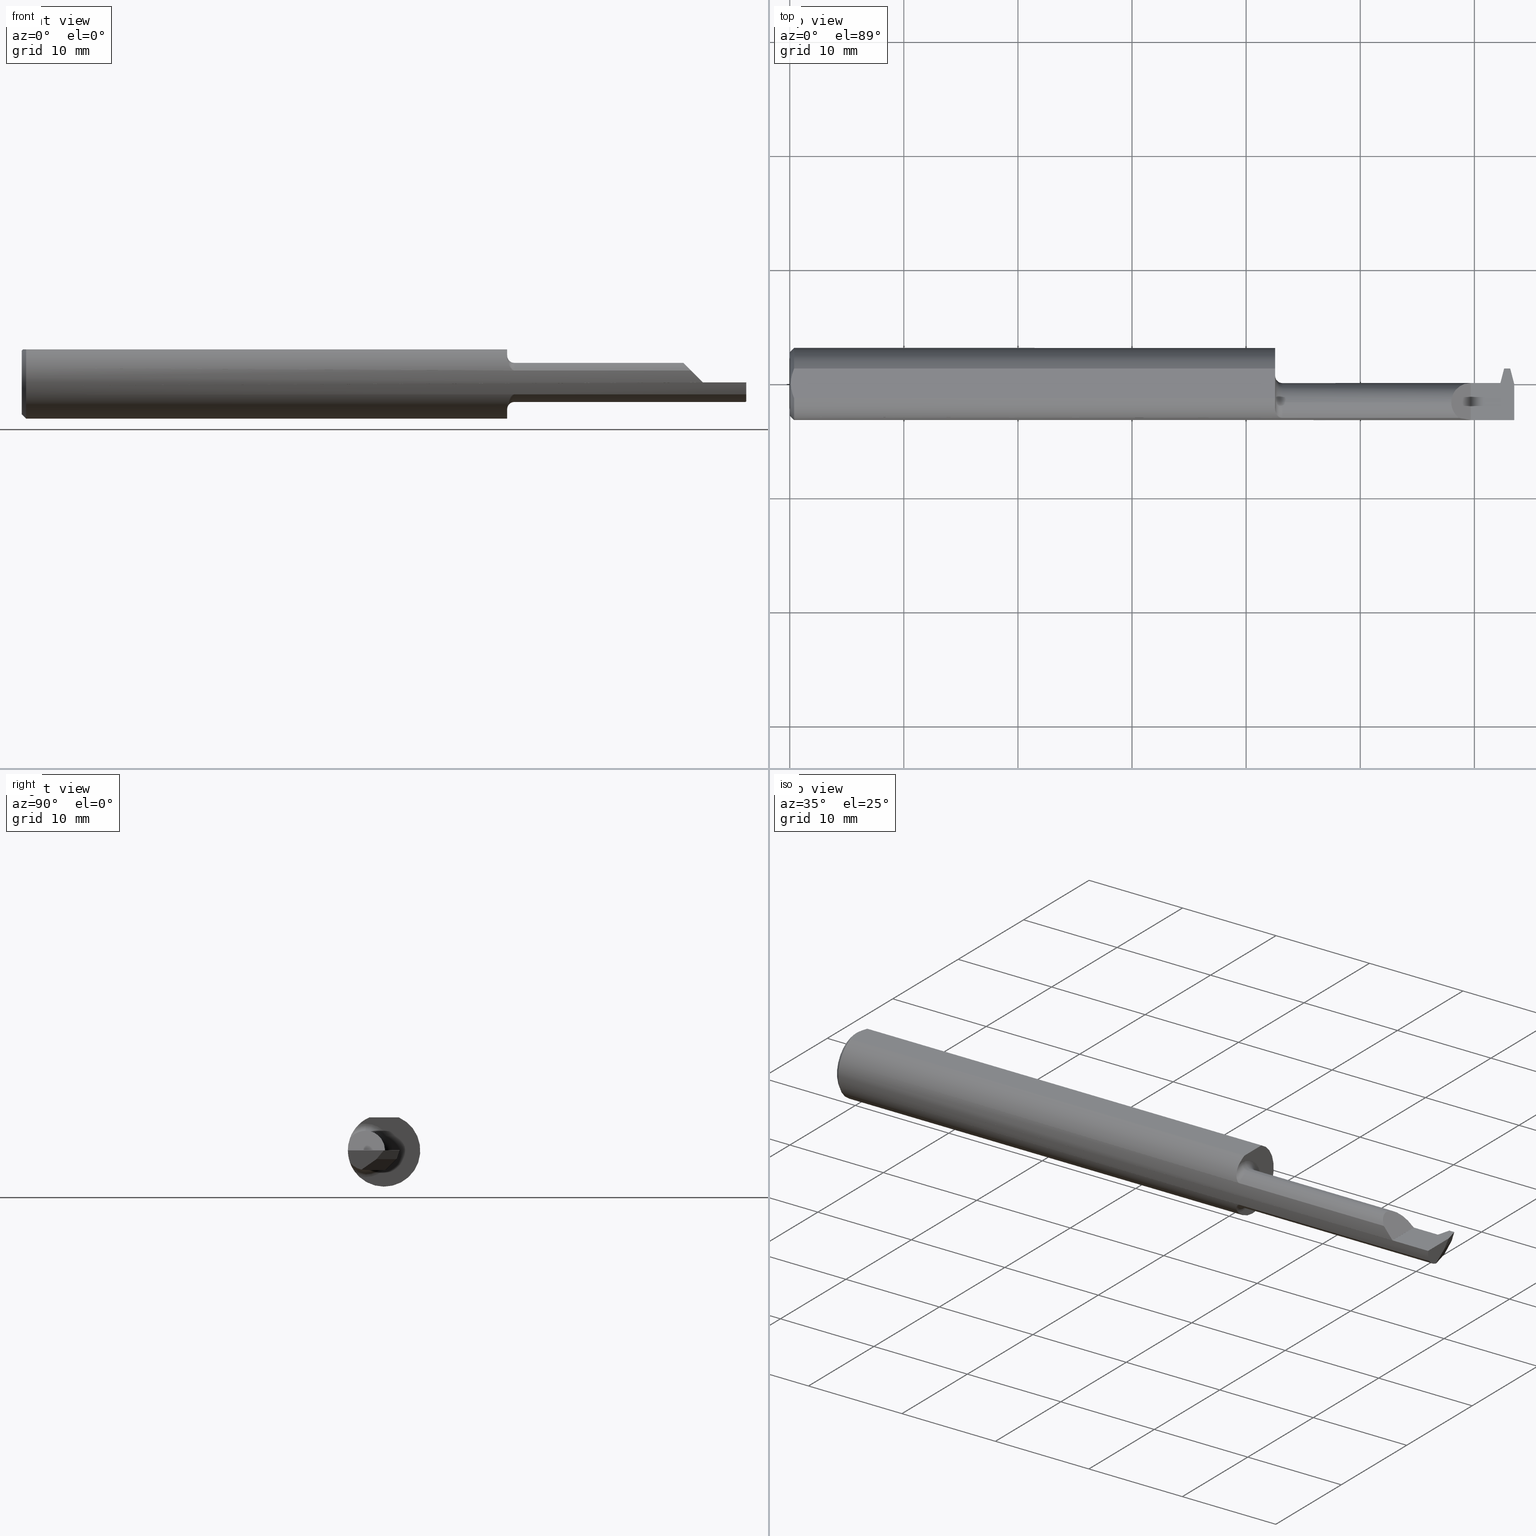
[diagram: canonical four-view strip — front | top / right | iso, engineering-drawing reading convention]
A machine part, canonical four-view strip (front | top / right | iso — engineering-drawing reading convention). The complete STEP part file that produces these views, byte-faithful:
ISO-10303-21;
HEADER;
FILE_DESCRIPTION (( 'STEP AP203' ),
    '1' );
FILE_NAME ('230910-FAT180750-16.STEP',
    '2024-04-30T20:59:46',
    ( '' ),
    ( '' ),
    'SwSTEP 2.0',
    'SolidWorks 2022',
    '' );
FILE_SCHEMA (( 'CONFIG_CONTROL_DESIGN' ));
ENDSEC;

DATA;
#1 = EDGE_CURVE ( 'NONE', #793, #836, #208, .T. ) ;
#2 = MANIFOLD_SOLID_BREP ( 'Cut-Sweep1', #902 ) ;
#3 = APPLICATION_CONTEXT ( 'configuration controlled 3d designs of mechanical parts and assemblies' ) ;
#4 = LINE ( 'NONE', #82, #509 ) ;
#5 = ORIENTED_EDGE ( 'NONE', *, *, #529, .F. ) ;
#6 = CARTESIAN_POINT ( 'NONE',  ( 2.500000000000000000, -0.0009839833285807519231, 0.000000000000000000 ) ) ;
#7 = DIRECTION ( 'NONE',  ( 0.000000000000000000, 0.8191520442889929088, 0.5735764363510444941 ) ) ;
#8 = ORIENTED_EDGE ( 'NONE', *, *, #322, .T. ) ;
#9 = ORIENTED_EDGE ( 'NONE', *, *, #558, .F. ) ;
#10 = B_SPLINE_CURVE_WITH_KNOTS ( 'NONE', 3,
 ( #788, #409, #29, #665, #202, #505, #736, #886, #440, #659, #808, #963 ),
 .UNSPECIFIED., .F., .F.,
 ( 4, 2, 2, 2, 2, 4 ),
 ( 0.000000000000000000, 0.0004231261345662541500, 0.0008462522691325083000, 0.001269378403698762396, 0.001480941470981889715, 0.001692504538265017251 ),
 .UNSPECIFIED. ) ;
#11 = EDGE_CURVE ( 'NONE', #83, #881, #441, .T. ) ;
#12 = PLANE ( 'NONE',  #840 ) ;
#13 = EDGE_LOOP ( 'NONE', ( #946, #233, #51, #955, #964, #243 ) ) ;
#14 = CARTESIAN_POINT ( 'NONE',  ( 2.308991305842072794, -0.1178880730380730268, 0.04110869415792675619 ) ) ;
#15 = DATE_TIME_ROLE ( 'classification_date' ) ;
#16 = EDGE_CURVE ( 'NONE', #265, #40, #671, .T. ) ;
#17 = ORIENTED_EDGE ( 'NONE', *, *, #784, .F. ) ;
#18 = DIRECTION ( 'NONE',  ( 1.000000000000000000, 0.000000000000000000, 0.000000000000000000 ) ) ;
#19 = APPROVAL_PERSON_ORGANIZATION ( #966, #775, #745 ) ;
#20 = ORIENTED_EDGE ( 'NONE', *, *, #645, .F. ) ;
#21 = CARTESIAN_POINT ( 'NONE',  ( 2.350000000000000089, -0.1248499599519359016, 9.999999999961100661E-05 ) ) ;
#22 = DIRECTION ( 'NONE',  ( -0.3464677099351416434, 0.000000000000000000, 0.9380618987957555222 ) ) ;
#23 = ORIENTED_EDGE ( 'NONE', *, *, #624, .F. ) ;
#24 = DIRECTION ( 'NONE',  ( -1.000000000000000000, -0.000000000000000000, -0.000000000000000000 ) ) ;
#25 = DIRECTION ( 'NONE',  ( 1.000000000000000000, 0.000000000000000000, 0.000000000000000000 ) ) ;
#26 = DIRECTION ( 'NONE',  ( 1.000000000000000000, -0.000000000000000000, -0.000000000000000000 ) ) ;
#27 = CARTESIAN_POINT ( 'NONE',  ( 0.005080301127456087092, -0.01778481300359936387, 0.1138500000000000206 ) ) ;
#28 = VECTOR ( 'NONE', #343, 39.37007874015748143 ) ;
#29 = CARTESIAN_POINT ( 'NONE',  ( 1.675463484348167054, -0.09455996579217590403, -0.08170711654871570806 ) ) ;
#30 = ADVANCED_BREP_SHAPE_REPRESENTATION ( '230910-FAT180750-16', ( #2, #67 ), #93 ) ;
#31 = EDGE_LOOP ( 'NONE', ( #427, #584, #566 ) ) ;
#32 = EDGE_CURVE ( 'NONE', #693, #883, #294, .T. ) ;
#33 = CARTESIAN_POINT ( 'NONE',  ( 2.488472951119633514, -0.01006077264900669468, -0.1835774135135380125 ) ) ;
#34 = LINE ( 'NONE', #950, #507 ) ;
#35 = CARTESIAN_POINT ( 'NONE',  ( 1.675000000000000044, -0.06435000000000003217, 0.000000000000000000 ) ) ;
#36 = EDGE_LOOP ( 'NONE', ( #929, #419, #50, #274, #938, #214 ) ) ;
#37 = CARTESIAN_POINT ( 'NONE',  ( 2.282599999999999962, -0.06435000000000003217, 0.06750000000000001832 ) ) ;
#38 = LINE ( 'NONE', #496, #219 ) ;
#39 = CYLINDRICAL_SURFACE ( 'NONE', #254, 0.06750000000000001832 ) ;
#40 = VERTEX_POINT ( 'NONE', #212 ) ;
#41 = EDGE_LOOP ( 'NONE', ( #614, #115, #777, #933, #961, #135, #941, #256, #850, #493, #570, #357, #528, #500 ) ) ;
#42 = CARTESIAN_POINT ( 'NONE',  ( 0.01499999999999970281, 1.528971528735470422E-17, 0.1248500000000000026 ) ) ;
#43 = ADVANCED_FACE ( 'NONE', ( #145 ), #450, .T. ) ;
#44 = CARTESIAN_POINT ( 'NONE',  ( 2.350000000000000089, 0.1499999999999999944, -3.367667473011537583E-17 ) ) ;
#45 = EDGE_CURVE ( 'NONE', #793, #656, #984, .T. ) ;
#46 = B_SPLINE_CURVE_WITH_KNOTS ( 'NONE', 3,
 ( #654, #962, #27, #864, #330, #637 ),
 .UNSPECIFIED., .F., .F.,
 ( 4, 2, 4 ),
 ( 0.002543458196361374386, 0.003213918189955199643, 0.003884378183549024900 ),
 .UNSPECIFIED. ) ;
#47 = CARTESIAN_POINT ( 'NONE',  ( 2.500000000000000000, 0.005320171601310302173, -0.06750000000000001832 ) ) ;
#48 = AXIS2_PLACEMENT_3D ( 'NONE', #355, #815, #967 ) ;
#49 = CIRCLE ( 'NONE', #190, 0.1098499999999999199 ) ;
#50 = ORIENTED_EDGE ( 'NONE', *, *, #73, .T. ) ;
#51 = ORIENTED_EDGE ( 'NONE', *, *, #369, .T. ) ;
#52 = DIRECTION ( 'NONE',  ( -1.000000000000000000, -0.000000000000000000, -0.000000000000000000 ) ) ;
#53 = DIRECTION ( 'NONE',  ( 0.000000000000000000, -0.6426264403010687465, -0.7661796514042753525 ) ) ;
#54 = ORIENTED_EDGE ( 'NONE', *, *, #774, .F. ) ;
#55 = ADVANCED_FACE ( 'NONE', ( #916 ), #832, .F. ) ;
#56 = PLANE ( 'NONE',  #858 ) ;
#57 = CARTESIAN_POINT ( 'NONE',  ( 1.675000000000000044, -0.08680804195804191215, 0.08973230383429835200 ) ) ;
#58 = ADVANCED_FACE ( 'NONE', ( #758 ), #75, .F. ) ;
#59 = ORIENTED_EDGE ( 'NONE', *, *, #376, .T. ) ;
#60 = APPLICATION_CONTEXT ( 'configuration controlled 3d designs of mechanical parts and assemblies' ) ;
#61 = CARTESIAN_POINT ( 'NONE',  ( 2.440098870360894789, 0.003149999999999981374, -0.009381965038885694066 ) ) ;
#62 = CARTESIAN_POINT ( 'NONE',  ( 0.01499999999999970281, 0.05124158467494929065, 0.1138500000000000068 ) ) ;
#63 = EDGE_LOOP ( 'NONE', ( #337, #724, #926, #91, #907 ) ) ;
#64 = VECTOR ( 'NONE', #824, 39.37007874015748143 ) ;
#65 = DIRECTION ( 'NONE',  ( 6.557334767063998874E-16, -0.9455185755993166241, 0.3255681544571571995 ) ) ;
#66 = DIRECTION ( 'NONE',  ( 1.000000000000000000, 0.000000000000000000, 0.000000000000000000 ) ) ;
#67 = AXIS2_PLACEMENT_3D ( 'NONE', #658, #911, #66 ) ;
#68 = EDGE_CURVE ( 'NONE', #871, #693, #4, .T. ) ;
#69 = CARTESIAN_POINT ( 'NONE',  ( 1.675000000000000044, -0.05595768985601794199, -0.06697625796091639938 ) ) ;
#70 = DIRECTION ( 'NONE',  ( 0.9116190025285794141, 0.2357607042868660741, -0.3367011798954063773 ) ) ;
#71 = EDGE_CURVE ( 'NONE', #664, #278, #633, .T. ) ;
#72 = CARTESIAN_POINT ( 'NONE',  ( 2.500000000000000000, 0.1050298648004461544, -0.06750000000000003220 ) ) ;
#73 = EDGE_CURVE ( 'NONE', #265, #977, #913, .T. ) ;
#74 = ADVANCED_FACE ( 'NONE', ( #385 ), #308, .T. ) ;
#75 = PLANE ( 'NONE',  #380 ) ;
#76 = AXIS2_PLACEMENT_3D ( 'NONE', #438, #447, #661 ) ;
#77 = ORIENTED_EDGE ( 'NONE', *, *, #727, .T. ) ;
#78 = LINE ( 'NONE', #90, #268 ) ;
#79 = AXIS2_PLACEMENT_3D ( 'NONE', #245, #18, #550 ) ;
#80 = ORIENTED_EDGE ( 'NONE', *, *, #645, .T. ) ;
#81 = PERSON ( 'UNSPECIFIED', 'UNSPECIFIED', 'UNSPECIFIED', ('UNSPECIFIED'), ('UNSPECIFIED'), ('UNSPECIFIED') ) ;
#82 = CARTESIAN_POINT ( 'NONE',  ( 2.442069120782206060, 0.003149999999999970966, 0.000000000000000000 ) ) ;
#83 = VERTEX_POINT ( 'NONE', #835 ) ;
#84 = CARTESIAN_POINT ( 'NONE',  ( 0.01499999999999970281, 0.000000000000000000, -0.1248500000000000026 ) ) ;
#85 = CALENDAR_DATE ( 2024, 30, 4 ) ;
#86 = PLANE ( 'NONE',  #79 ) ;
#87 = PLANE ( 'NONE',  #970 ) ;
#88 =( BOUNDED_CURVE ( )  B_SPLINE_CURVE ( 3, ( #649, #266, #338, #37 ),
 .UNSPECIFIED., .F., .T. ) 
 B_SPLINE_CURVE_WITH_KNOTS ( ( 4, 4 ),
 ( 4.713870462408088713, 6.283185307179586232 ),
 .UNSPECIFIED. ) 
 CURVE ( )  GEOMETRIC_REPRESENTATION_ITEM ( )  RATIONAL_B_SPLINE_CURVE ( ( 1.000000000000000000, 0.8050869134249070136, 0.8050869134249070136, 1.000000000000000000 ) ) 
 REPRESENTATION_ITEM ( '' )  );
#89 = DIRECTION ( 'NONE',  ( 0.000000000000000000, 0.000000000000000000, 1.000000000000000000 ) ) ;
#90 = CARTESIAN_POINT ( 'NONE',  ( 2.450000000000000178, 0.003149999999999972267, 3.478577320754614054E-18 ) ) ;
#91 = ORIENTED_EDGE ( 'NONE', *, *, #501, .F. ) ;
#92 = CARTESIAN_POINT ( 'NONE',  ( 1.675000000000000044, -0.06435000000000003217, 0.09250000000000002665 ) ) ;
#93 =( GEOMETRIC_REPRESENTATION_CONTEXT ( 3 ) GLOBAL_UNCERTAINTY_ASSIGNED_CONTEXT ( ( #801 ) ) GLOBAL_UNIT_ASSIGNED_CONTEXT ( ( #514, #982, #443 ) ) REPRESENTATION_CONTEXT ( 'NONE', 'WORKASPACE' ) );
#94 = ORIENTED_EDGE ( 'NONE', *, *, #351, .F. ) ;
#95 = DIRECTION ( 'NONE',  ( 1.000000000000000000, 0.000000000000000000, 0.000000000000000000 ) ) ;
#96 = DIRECTION ( 'NONE',  ( -1.000000000000000000, 0.000000000000000000, -0.000000000000000000 ) ) ;
#97 = EDGE_CURVE ( 'NONE', #618, #83, #152, .T. ) ;
#98 = DIRECTION ( 'NONE',  ( 0.000000000000000000, -0.8191520442889929088, -0.5735764363510444941 ) ) ;
#99 = CARTESIAN_POINT ( 'NONE',  ( 1.675000000000000044, -0.06435000000000003217, 0.06750000000000001832 ) ) ;
#100 = PLANE ( 'NONE',  #663 ) ;
#101 = EDGE_CURVE ( 'NONE', #592, #836, #458, .T. ) ;
#102 = ORIENTED_EDGE ( 'NONE', *, *, #430, .F. ) ;
#103 = CARTESIAN_POINT ( 'NONE',  ( 1.675000000000000044, 0.003149999999999980507, -3.367667473011537583E-17 ) ) ;
#104 = PLANE ( 'NONE',  #571 ) ;
#105 = VECTOR ( 'NONE', #660, 39.37007874015748854 ) ;
#106 = VECTOR ( 'NONE', #477, 39.37007874015748143 ) ;
#107 = FACE_OUTER_BOUND ( 'NONE', #719, .T. ) ;
#108 = CIRCLE ( 'NONE', #367, 0.1248500000000000026 ) ;
#109 = CC_DESIGN_PERSON_AND_ORGANIZATION_ASSIGNMENT ( #300, #609, ( #172 ) ) ;
#110 = ORIENTED_EDGE ( 'NONE', *, *, #642, .F. ) ;
#111 = CARTESIAN_POINT ( 'NONE',  ( 2.500000000000000000, -0.06435000000000003217, 0.000000000000000000 ) ) ;
#112 = LINE ( 'NONE', #44, #28 ) ;
#113 = ADVANCED_FACE ( 'NONE', ( #466 ), #846, .F. ) ;
#114 = LINE ( 'NONE', #335, #347 ) ;
#115 = ORIENTED_EDGE ( 'NONE', *, *, #386, .F. ) ;
#116 = VERTEX_POINT ( 'NONE', #92 ) ;
#117 = EDGE_CURVE ( 'NONE', #303, #151, #49, .T. ) ;
#118 = DIRECTION ( 'NONE',  ( 0.7071067811865386910, 8.659560562355041327E-17, 0.7071067811865563435 ) ) ;
#119 = CARTESIAN_POINT ( 'NONE',  ( 1.682148820116563304, -0.1099047179638918265, 0.05947070158462895717 ) ) ;
#120 = CARTESIAN_POINT ( 'NONE',  ( 1.699999999999999956, -0.06435000000000003217, 0.000000000000000000 ) ) ;
#121 = ORIENTED_EDGE ( 'NONE', *, *, #771, .F. ) ;
#122 = CARTESIAN_POINT ( 'NONE',  ( 2.436366871395940326, -0.002552249386265832611, -0.02715304806246835595 ) ) ;
#123 = FACE_OUTER_BOUND ( 'NONE', #13, .T. ) ;
#124 = CARTESIAN_POINT ( 'NONE',  ( 1.675000000000000044, -0.06435000000000003217, 0.000000000000000000 ) ) ;
#125 = AXIS2_PLACEMENT_3D ( 'NONE', #124, #433, #510 ) ;
#126 = VECTOR ( 'NONE', #934, 39.37007874015748143 ) ;
#127 = ORIENTED_EDGE ( 'NONE', *, *, #210, .T. ) ;
#128 =( BOUNDED_CURVE ( )  B_SPLINE_CURVE ( 3, ( #372, #525, #61, #830 ),
 .UNSPECIFIED., .F., .T. ) 
 B_SPLINE_CURVE_WITH_KNOTS ( ( 4, 4 ),
 ( 1.156804228221840036, 1.570796326794896780 ),
 .UNSPECIFIED. ) 
 CURVE ( )  GEOMETRIC_REPRESENTATION_ITEM ( )  RATIONAL_B_SPLINE_CURVE ( ( 1.000000000000000000, 0.9857684695413670983, 0.9857684695413670983, 1.000000000000000000 ) ) 
 REPRESENTATION_ITEM ( '' )  );
#129 = FACE_OUTER_BOUND ( 'NONE', #183, .T. ) ;
#130 = APPROVAL_STATUS ( 'not_yet_approved' ) ;
#131 = DIRECTION ( 'NONE',  ( -1.000000000000000000, -0.000000000000000000, -0.000000000000000000 ) ) ;
#132 = EDGE_LOOP ( 'NONE', ( #391, #757, #942, #238 ) ) ;
#133 = LINE ( 'NONE', #668, #64 ) ;
#134 = APPLICATION_PROTOCOL_DEFINITION ( 'international standard', 'config_control_design', 1994, #60 ) ;
#135 = ORIENTED_EDGE ( 'NONE', *, *, #240, .F. ) ;
#136 = CARTESIAN_POINT ( 'NONE',  ( 1.697138575833329277, -0.1178880730380729991, 0.04110869415792683251 ) ) ;
#137 = VERTEX_POINT ( 'NONE', #772 ) ;
#138 = DIRECTION ( 'NONE',  ( 0.000000000000000000, -0.3255681544571571995, -0.9455185755993166241 ) ) ;
#139 = EDGE_LOOP ( 'NONE', ( #805, #697, #653, #743 ) ) ;
#140 = CARTESIAN_POINT ( 'NONE',  ( 2.500000000000000000, -0.02614621933119233924, -0.03000000000000118197 ) ) ;
#141 = DATE_TIME_ROLE ( 'creation_date' ) ;
#142 = ORIENTED_EDGE ( 'NONE', *, *, #532, .F. ) ;
#143 = AXIS2_PLACEMENT_3D ( 'NONE', #873, #196, #179 ) ;
#144 = ADVANCED_FACE ( 'NONE', ( #160 ), #403, .T. ) ;
#145 = FACE_OUTER_BOUND ( 'NONE', #900, .T. ) ;
#146 = ADVANCED_FACE ( 'NONE', ( #766 ), #86, .T. ) ;
#147 = CARTESIAN_POINT ( 'NONE',  ( 2.399999999999999911, 0.07282017160130958844, 0.000000000000000000 ) ) ;
#148 = DATE_AND_TIME ( #674, #313 ) ;
#149 = CARTESIAN_POINT ( 'NONE',  ( 0.000000000000000000, 0.000000000000000000, 0.000000000000000000 ) ) ;
#150 = DIRECTION ( 'NONE',  ( -0.000000000000000000, 0.000000000000000000, -1.000000000000000000 ) ) ;
#151 = VERTEX_POINT ( 'NONE', #617 ) ;
#152 = LINE ( 'NONE', #305, #713 ) ;
#153 = AXIS2_PLACEMENT_3D ( 'NONE', #797, #944, #787 ) ;
#154 = EDGE_LOOP ( 'NONE', ( #446, #737, #947, #854, #434, #751, #542, #506 ) ) ;
#155 = VECTOR ( 'NONE', #903, 39.37007874015748854 ) ;
#156 = AXIS2_PLACEMENT_3D ( 'NONE', #232, #690, #7 ) ;
#157 = FACE_OUTER_BOUND ( 'NONE', #675, .T. ) ;
#158 = AXIS2_PLACEMENT_3D ( 'NONE', #198, #707, #798 ) ;
#159 = ADVANCED_FACE ( 'NONE', ( #390 ), #12, .T. ) ;
#160 = FACE_OUTER_BOUND ( 'NONE', #350, .T. ) ;
#161 = DIRECTION ( 'NONE',  ( -1.000000000000000000, -0.000000000000000000, -0.000000000000000000 ) ) ;
#162 = DIRECTION ( 'NONE',  ( -1.000000000000000000, -0.000000000000000000, -0.000000000000000000 ) ) ;
#163 = VERTEX_POINT ( 'NONE', #315 ) ;
#164 = LINE ( 'NONE', #925, #919 ) ;
#165 = SHAPE_DEFINITION_REPRESENTATION ( #562, #30 ) ;
#166 = VERTEX_POINT ( 'NONE', #625 ) ;
#167 = LINE ( 'NONE', #321, #696 ) ;
#168 = VERTEX_POINT ( 'NONE', #852 ) ;
#169 = CARTESIAN_POINT ( 'NONE',  ( 2.472988169046598461, 0.005320171601310302173, -0.06750000000000001832 ) ) ;
#170 = AXIS2_PLACEMENT_3D ( 'NONE', #755, #70, #678 ) ;
#171 = CARTESIAN_POINT ( 'NONE',  ( 0.003999999999982594735, -1.276290005483319770E-15, 0.1138500000000000068 ) ) ;
#172 = PRODUCT_DEFINITION_FORMATION_WITH_SPECIFIED_SOURCE ( 'ANY', '', #364, .NOT_KNOWN. ) ;
#173 = ORIENTED_EDGE ( 'NONE', *, *, #742, .F. ) ;
#174 = DIRECTION ( 'NONE',  ( -1.000000000000000000, -0.000000000000000000, -0.000000000000000000 ) ) ;
#175 = EDGE_CURVE ( 'NONE', #310, #521, #167, .T. ) ;
#176 = CARTESIAN_POINT ( 'NONE',  ( 1.675472843869164175, -0.09461185655952933371, 0.08164619401006140142 ) ) ;
#177 = EDGE_CURVE ( 'NONE', #836, #456, #249, .T. ) ;
#178 = DIRECTION ( 'NONE',  ( 0.000000000000000000, 0.000000000000000000, -1.000000000000000000 ) ) ;
#179 = DIRECTION ( 'NONE',  ( 0.000000000000000000, 0.000000000000000000, 1.000000000000000000 ) ) ;
#180 = CARTESIAN_POINT ( 'NONE',  ( 0.01499999999999970281, 0.05124158467494929065, 0.1138500000000000068 ) ) ;
#181 = CC_DESIGN_DATE_AND_TIME_ASSIGNMENT ( #825, #141, ( #314 ) ) ;
#182 = LINE ( 'NONE', #47, #287 ) ;
#183 = EDGE_LOOP ( 'NONE', ( #909, #389, #800, #102, #518, #599, #395, #360, #312, #306, #688, #686, #420 ) ) ;
#184 = ORIENTED_EDGE ( 'NONE', *, *, #784, .T. ) ;
#185 = DIRECTION ( 'NONE',  ( 1.000000000000000000, 1.067128122525114190E-16, 1.922721241686373240E-32 ) ) ;
#186 = EDGE_CURVE ( 'NONE', #40, #664, #826, .T. ) ;
#187 = FACE_OUTER_BOUND ( 'NONE', #452, .T. ) ;
#188 = AXIS2_PLACEMENT_3D ( 'NONE', #517, #749, #593 ) ;
#189 = VECTOR ( 'NONE', #392, 39.37007874015748143 ) ;
#190 = AXIS2_PLACEMENT_3D ( 'NONE', #695, #162, #841 ) ;
#191 = CARTESIAN_POINT ( 'NONE',  ( 0.000000000000000000, 0.000000000000000000, 0.000000000000000000 ) ) ;
#192 = TOROIDAL_SURFACE ( 'NONE', #158, 0.09250000000000002665, 0.02500000000000000139 ) ;
#193 = EDGE_LOOP ( 'NONE', ( #203, #127 ) ) ;
#194 = CC_DESIGN_APPROVAL ( #775, ( #314 ) ) ;
#195 = EDGE_LOOP ( 'NONE', ( #366, #773, #622, #251 ) ) ;
#196 = DIRECTION ( 'NONE',  ( -1.000000000000000000, -0.000000000000000000, -0.000000000000000000 ) ) ;
#197 = CARTESIAN_POINT ( 'NONE',  ( 1.678561661930270121, -0.1044486834845270024, 0.06860236071768735511 ) ) ;
#198 = CARTESIAN_POINT ( 'NONE',  ( 1.699999999999999956, -0.06435000000000003217, 0.000000000000000000 ) ) ;
#199 = ORIENTED_EDGE ( 'NONE', *, *, #376, .F. ) ;
#200 = CARTESIAN_POINT ( 'NONE',  ( 2.498524702252900909, -0.07335304073178651463, -0.06704894329466547231 ) ) ;
#201 = DIRECTION ( 'NONE',  ( 0.000000000000000000, -0.8191520442889929088, -0.5735764363510444941 ) ) ;
#202 = CARTESIAN_POINT ( 'NONE',  ( 1.678579630862570671, -0.1044777942651883146, -0.06855471305740289123 ) ) ;
#203 = ORIENTED_EDGE ( 'NONE', *, *, #117, .T. ) ;
#204 = PLANE ( 'NONE',  #712 ) ;
#205 = EDGE_LOOP ( 'NONE', ( #5, #478, #473, #769 ) ) ;
#206 = DIRECTION ( 'NONE',  ( 0.000000000000000000, -1.000000000000000000, 0.000000000000000000 ) ) ;
#207 = AXIS2_PLACEMENT_3D ( 'NONE', #242, #95, #234 ) ;
#208 = LINE ( 'NONE', #828, #105 ) ;
#209 = CARTESIAN_POINT ( 'NONE',  ( 2.452069120782205847, 0.003149999999999971833, 0.000000000000000000 ) ) ;
#210 = EDGE_CURVE ( 'NONE', #151, #303, #605, .T. ) ;
#211 = CARTESIAN_POINT ( 'NONE',  ( 1.699999999999999956, -0.1178880730380729852, 0.04110869415792685333 ) ) ;
#212 = CARTESIAN_POINT ( 'NONE',  ( 1.699999999999999956, -0.06435000000000003217, -0.06750000000000001832 ) ) ;
#213 = CARTESIAN_POINT ( 'NONE',  ( 2.440128569999999719, -0.01196363089143154951, -0.1891037151198632915 ) ) ;
#214 = ORIENTED_EDGE ( 'NONE', *, *, #320, .T. ) ;
#215 = EDGE_CURVE ( 'NONE', #896, #406, #906, .T. ) ;
#216 = DIRECTION ( 'NONE',  ( 0.000000000000000000, -0.7071067811865514585, 0.7071067811865436870 ) ) ;
#217 = COORDINATED_UNIVERSAL_TIME_OFFSET ( 8, 0, .BEHIND. ) ;
#218 = ADVANCED_FACE ( 'NONE', ( #804 ), #100, .T. ) ;
#219 = VECTOR ( 'NONE', #201, 39.37007874015748143 ) ;
#220 = CARTESIAN_POINT ( 'NONE',  ( 2.452069120782205847, 0.003149999999999971833, 0.000000000000000000 ) ) ;
#221 = AXIS2_PLACEMENT_3D ( 'NONE', #255, #565, #340 ) ;
#222 = DIRECTION ( 'NONE',  ( 0.000000000000000000, 1.770642218115725568E-15, -1.000000000000000000 ) ) ;
#223 = VERTEX_POINT ( 'NONE', #171 ) ;
#224 = LOCAL_TIME ( 13, 59, 46.00000000000000000, #217 ) ;
#225 = ORIENTED_EDGE ( 'NONE', *, *, #924, .F. ) ;
#226 = VERTEX_POINT ( 'NONE', #569 ) ;
#227 = CARTESIAN_POINT ( 'NONE',  ( 2.308991305842072794, -0.1178880730380730268, 0.04110869415792675619 ) ) ;
#228 = PERSON_AND_ORGANIZATION ( #81, #652 ) ;
#229 = ORIENTED_EDGE ( 'NONE', *, *, #880, .F. ) ;
#230 =( BOUNDED_CURVE ( )  B_SPLINE_CURVE ( 3, ( #21, #917, #910, #227 ),
 .UNSPECIFIED., .F., .T. ) 
 B_SPLINE_CURVE_WITH_KNOTS ( ( 4, 4 ),
 ( 4.713189941623711299, 5.047913695406924361 ),
 .UNSPECIFIED. ) 
 CURVE ( )  GEOMETRIC_REPRESENTATION_ITEM ( )  RATIONAL_B_SPLINE_CURVE ( ( 1.000000000000000000, 0.9906851070496518474, 0.9906851070496518474, 1.000000000000000000 ) ) 
 REPRESENTATION_ITEM ( '' )  );
#231 = EDGE_CURVE ( 'NONE', #822, #643, #425, .T. ) ;
#232 = CARTESIAN_POINT ( 'NONE',  ( 2.456947195464070255, 3.128308802917997955, 2.162671143948034391 ) ) ;
#233 = ORIENTED_EDGE ( 'NONE', *, *, #399, .T. ) ;
#234 = DIRECTION ( 'NONE',  ( 0.000000000000000000, 0.000000000000000000, -1.000000000000000000 ) ) ;
#235 = CARTESIAN_POINT ( 'NONE',  ( 2.485431041314417833, 0.05535000000000005194, 0.000000000000000000 ) ) ;
#236 = EDGE_LOOP ( 'NONE', ( #494, #291, #8, #860 ) ) ;
#237 = PLANE ( 'NONE',  #556 ) ;
#238 = ORIENTED_EDGE ( 'NONE', *, *, #503, .T. ) ;
#239 = AXIS2_PLACEMENT_3D ( 'NONE', #407, #257, #561 ) ;
#240 = EDGE_CURVE ( 'NONE', #278, #703, #405, .T. ) ;
#241 = DIRECTION ( 'NONE',  ( 1.000000000000000000, 0.000000000000000000, 0.000000000000000000 ) ) ;
#242 = CARTESIAN_POINT ( 'NONE',  ( 1.699999999999999956, -0.06435000000000003217, 0.000000000000000000 ) ) ;
#243 = ORIENTED_EDGE ( 'NONE', *, *, #356, .T. ) ;
#244 = ADVANCED_FACE ( 'NONE', ( #869 ), #39, .T. ) ;
#245 = CARTESIAN_POINT ( 'NONE',  ( 2.500000000000000000, 0.000000000000000000, 0.000000000000000000 ) ) ;
#246 = APPROVAL ( #538, 'UNSPECIFIED' ) ;
#247 = ORIENTED_EDGE ( 'NONE', *, *, #845, .F. ) ;
#248 = DIRECTION ( 'NONE',  ( -0.000000000000000000, 0.000000000000000000, 1.000000000000000000 ) ) ;
#249 = LINE ( 'NONE', #498, #269 ) ;
#250 = EDGE_CURVE ( 'NONE', #521, #163, #732, .T. ) ;
#251 = ORIENTED_EDGE ( 'NONE', *, *, #885, .T. ) ;
#252 = CARTESIAN_POINT ( 'NONE',  ( 2.452069120782205847, 0.003149999999999971833, 0.000000000000000000 ) ) ;
#253 = VECTOR ( 'NONE', #288, 39.37007874015748143 ) ;
#254 = AXIS2_PLACEMENT_3D ( 'NONE', #35, #876, #492 ) ;
#255 = CARTESIAN_POINT ( 'NONE',  ( 1.699999999999999956, -0.06435000000000003217, 0.000000000000000000 ) ) ;
#256 = ORIENTED_EDGE ( 'NONE', *, *, #215, .F. ) ;
#257 = DIRECTION ( 'NONE',  ( 1.000000000000000000, 0.000000000000000000, 0.000000000000000000 ) ) ;
#258 = CARTESIAN_POINT ( 'NONE',  ( 2.350000000000000089, -0.06435000000000003217, 0.000000000000000000 ) ) ;
#259 = DIRECTION ( 'NONE',  ( 0.000000000000000000, 0.000000000000000000, -1.000000000000000000 ) ) ;
#260 = ADVANCED_FACE ( 'NONE', ( #107 ), #192, .F. ) ;
#261 = ORIENTED_EDGE ( 'NONE', *, *, #706, .F. ) ;
#262 = DIRECTION ( 'NONE',  ( 1.000000000000000000, -0.000000000000000000, -0.000000000000000000 ) ) ;
#263 = PLANE ( 'NONE',  #432 ) ;
#264 = CARTESIAN_POINT ( 'NONE',  ( 1.675000000000000044, -0.06435000000000003217, -0.09250000000000002665 ) ) ;
#265 = VERTEX_POINT ( 'NONE', #631 ) ;
#266 = CARTESIAN_POINT ( 'NONE',  ( 2.310505889776659494, 0.003091416068753647349, 0.03959411022334007740 ) ) ;
#267 = CARTESIAN_POINT ( 'NONE',  ( 2.456947195464070255, -0.05670567100518226350, -0.06750000000000030975 ) ) ;
#268 = VECTOR ( 'NONE', #398, 39.37007874015748143 ) ;
#269 = VECTOR ( 'NONE', #859, 39.37007874015748143 ) ;
#270 = AXIS2_PLACEMENT_3D ( 'NONE', #120, #418, #937 ) ;
#271 = DIRECTION ( 'NONE',  ( 0.000000000000000000, 0.000000000000000000, 1.000000000000000000 ) ) ;
#272 = VECTOR ( 'NONE', #185, 39.37007874015748143 ) ;
#273 = APPROVAL_PERSON_ORGANIZATION ( #918, #246, #843 ) ;
#274 = ORIENTED_EDGE ( 'NONE', *, *, #382, .F. ) ;
#275 = CARTESIAN_POINT ( 'NONE',  ( 2.465114956251801104, 0.07642515056459076028, 0.003604978963281216513 ) ) ;
#276 = DIRECTION ( 'NONE',  ( -1.000000000000000000, -0.000000000000000000, -0.000000000000000000 ) ) ;
#277 = CARTESIAN_POINT ( 'NONE',  ( 2.500000000000000000, 0.000000000000000000, 0.000000000000000000 ) ) ;
#278 = VERTEX_POINT ( 'NONE', #791 ) ;
#279 = CARTESIAN_POINT ( 'NONE',  ( 2.468835921424707536, 0.04282017160131001976, -0.02999999999999982889 ) ) ;
#280 = EDGE_CURVE ( 'NONE', #166, #639, #114, .T. ) ;
#281 = CARTESIAN_POINT ( 'NONE',  ( 1.675000000000000044, 0.1000000000000000056, 0.1138500000000000068 ) ) ;
#282 = ORIENTED_EDGE ( 'NONE', *, *, #577, .F. ) ;
#283 = CARTESIAN_POINT ( 'NONE',  ( 2.236250000000000071, 0.1000000000000000056, 0.1138500000000000068 ) ) ;
#284 = COORDINATED_UNIVERSAL_TIME_OFFSET ( 8, 0, .BEHIND. ) ;
#285 = DIRECTION ( 'NONE',  ( 0.000000000000000000, 5.352945392990784272E-15, -1.000000000000000000 ) ) ;
#286 = VECTOR ( 'NONE', #613, 39.37007874015748143 ) ;
#287 = VECTOR ( 'NONE', #25, 39.37007874015748143 ) ;
#288 = DIRECTION ( 'NONE',  ( 1.000000000000000000, 1.067128122525114190E-16, -0.000000000000000000 ) ) ;
#289 = PLANE ( 'NONE',  #682 ) ;
#290 = APPROVAL_DATE_TIME ( #526, #775 ) ;
#291 = ORIENTED_EDGE ( 'NONE', *, *, #1, .F. ) ;
#292 = CARTESIAN_POINT ( 'NONE',  ( 2.465568958685582679, 0.05535000000000005194, 0.000000000000000000 ) ) ;
#293 = APPLICATION_PROTOCOL_DEFINITION ( 'international standard', 'config_control_design', 1994, #3 ) ;
#294 = LINE ( 'NONE', #220, #253 ) ;
#295 = PLANE ( 'NONE',  #901 ) ;
#296 = CIRCLE ( 'NONE', #76, 0.09250000000000002665 ) ;
#297 = CARTESIAN_POINT ( 'NONE',  ( 2.350000000000000089, 0.05314999999999979463, -3.367667473011537583E-17 ) ) ;
#298 = AXIS2_PLACEMENT_3D ( 'NONE', #111, #26, #416 ) ;
#299 = CARTESIAN_POINT ( 'NONE',  ( 0.003999999999999733803, 0.008800694614867364887, 0.1138500000000000068 ) ) ;
#300 = PERSON_AND_ORGANIZATION ( #81, #652 ) ;
#301 = CIRCLE ( 'NONE', #239, 0.06750000000000001832 ) ;
#302 = DIRECTION ( 'NONE',  ( 1.000000000000000000, 0.000000000000000000, 0.000000000000000000 ) ) ;
#303 = VERTEX_POINT ( 'NONE', #414 ) ;
#304 = DIRECTION ( 'NONE',  ( 0.9474803064293684240, -0.2450350680735325082, 0.2055210070593990190 ) ) ;
#305 = CARTESIAN_POINT ( 'NONE',  ( 2.446947195464070024, 3.128308802917997955, 2.162671143948034391 ) ) ;
#306 = ORIENTED_EDGE ( 'NONE', *, *, #971, .T. ) ;
#307 = FACE_OUTER_BOUND ( 'NONE', #554, .T. ) ;
#308 = PLANE ( 'NONE',  #156 ) ;
#309 = AXIS2_PLACEMENT_3D ( 'NONE', #586, #131, #285 ) ;
#310 = VERTEX_POINT ( 'NONE', #641 ) ;
#311 = DIRECTION ( 'NONE',  ( -1.000000000000000000, 0.000000000000000000, 0.000000000000000000 ) ) ;
#312 = ORIENTED_EDGE ( 'NONE', *, *, #401, .F. ) ;
#313 = LOCAL_TIME ( 13, 59, 46.00000000000000000, #373 ) ;
#314 = PRODUCT_DEFINITION ( 'UNKNOWN', '', #172, #421 ) ;
#315 = CARTESIAN_POINT ( 'NONE',  ( 2.350000000000000089, -0.1248499599519359016, 9.999999999961100661E-05 ) ) ;
#316 = ORIENTED_EDGE ( 'NONE', *, *, #401, .T. ) ;
#317 = ADVANCED_FACE ( 'NONE', ( #945 ), #872, .F. ) ;
#318 = DIRECTION ( 'NONE',  ( -1.000000000000000000, 0.000000000000000000, -0.000000000000000000 ) ) ;
#319 = DATE_AND_TIME ( #931, #402 ) ;
#320 = EDGE_CURVE ( 'NONE', #816, #643, #182, .T. ) ;
#321 = CARTESIAN_POINT ( 'NONE',  ( 2.500000000000000000, -0.1248500000000000026, -3.367667473011537583E-17 ) ) ;
#322 = EDGE_CURVE ( 'NONE', #793, #701, #722, .T. ) ;
#323 = VERTEX_POINT ( 'NONE', #264 ) ;
#324 = CARTESIAN_POINT ( 'NONE',  ( 2.500000000000000000, -0.07777569386178065369, -0.06615134726012476818 ) ) ;
#325 = PLANE ( 'NONE',  #972 ) ;
#326 = ORIENTED_EDGE ( 'NONE', *, *, #426, .F. ) ;
#327 = VECTOR ( 'NONE', #52, 39.37007874015748143 ) ;
#328 = LINE ( 'NONE', #572, #827 ) ;
#329 = AXIS2_PLACEMENT_3D ( 'NONE', #535, #302, #610 ) ;
#330 = CARTESIAN_POINT ( 'NONE',  ( 0.01167347033176715718, -0.04313650299737421812, 0.1138500000000000068 ) ) ;
#331 = DIRECTION ( 'NONE',  ( -1.000000000000000000, -0.000000000000000000, -0.000000000000000000 ) ) ;
#332 = ORIENTED_EDGE ( 'NONE', *, *, #595, .T. ) ;
#333 = DIRECTION ( 'NONE',  ( -0.1200238624775787494, 0.3232146245633322756, 0.9386834284807350492 ) ) ;
#334 = CARTESIAN_POINT ( 'NONE',  ( 0.01167190377471843954, 0.04313268608482607319, 0.1138500000000000068 ) ) ;
#335 = CARTESIAN_POINT ( 'NONE',  ( 2.450000000000000178, 0.01517271303695656541, -0.01717021365936204427 ) ) ;
#336 = ORIENTED_EDGE ( 'NONE', *, *, #177, .F. ) ;
#337 = ORIENTED_EDGE ( 'NONE', *, *, #851, .T. ) ;
#338 = CARTESIAN_POINT ( 'NONE',  ( 2.282599999999999962, -0.02485584643600085783, 0.06749999999999999056 ) ) ;
#339 = CARTESIAN_POINT ( 'NONE',  ( 1.688797751365139321, -0.1151316249329346203, 0.04835186460175136536 ) ) ;
#340 = DIRECTION ( 'NONE',  ( 0.000000000000000000, 0.000000000000000000, -1.000000000000000000 ) ) ;
#341 = ORIENTED_EDGE ( 'NONE', *, *, #32, .T. ) ;
#342 = CARTESIAN_POINT ( 'NONE',  ( 0.01499999999999970281, 0.000000000000000000, 0.000000000000000000 ) ) ;
#343 = DIRECTION ( 'NONE',  ( -0.000000000000000000, 1.000000000000000000, -0.000000000000000000 ) ) ;
#344 = AXIS2_PLACEMENT_3D ( 'NONE', #673, #513, #222 ) ;
#345 = ADVANCED_FACE ( 'NONE', ( #953 ), #325, .T. ) ;
#346 = AXIS2_PLACEMENT_3D ( 'NONE', #764, #383, #388 ) ;
#347 = VECTOR ( 'NONE', #728, 39.37007874015748143 ) ;
#348 = DIRECTION ( 'NONE',  ( 1.000000000000000000, 0.000000000000000000, 0.000000000000000000 ) ) ;
#349 = VECTOR ( 'NONE', #904, 39.37007874015748143 ) ;
#350 = EDGE_LOOP ( 'NONE', ( #467, #261, #611, #454, #547, #533 ) ) ;
#351 = EDGE_CURVE ( 'NONE', #465, #539, #10, .T. ) ;
#352 = DIRECTION ( 'NONE',  ( 0.000000000000000000, -1.000000000000000000, 0.000000000000000000 ) ) ;
#353 = EDGE_CURVE ( 'NONE', #701, #592, #591, .T. ) ;
#354 = ORIENTED_EDGE ( 'NONE', *, *, #399, .F. ) ;
#355 = CARTESIAN_POINT ( 'NONE',  ( 1.699999999999999956, -0.06435000000000003217, -0.09250000000000002665 ) ) ;
#356 = EDGE_CURVE ( 'NONE', #844, #896, #882, .T. ) ;
#357 = ORIENTED_EDGE ( 'NONE', *, *, #927, .T. ) ;
#358 = CARTESIAN_POINT ( 'NONE',  ( 2.450000000000000178, -0.004283243744551730979, -0.03079342126085642811 ) ) ;
#359 = CARTESIAN_POINT ( 'NONE',  ( 2.500000000000000000, -0.0005776289714501376240, 0.0004844812167191136143 ) ) ;
#360 = ORIENTED_EDGE ( 'NONE', *, *, #672, .F. ) ;
#361 = PRODUCT_RELATED_PRODUCT_CATEGORY ( 'detail', '', ( #364 ) ) ;
#362 = FACE_OUTER_BOUND ( 'NONE', #499, .T. ) ;
#363 = CALENDAR_DATE ( 2024, 30, 4 ) ;
#364 = PRODUCT ( '230910-FAT180750-16', '230910-FAT180750-16', '', ( #601 ) ) ;
#365 = CARTESIAN_POINT ( 'NONE',  ( 1.694575795023727460, -0.1173638605453972278, 0.04262586039006312916 ) ) ;
#366 = ORIENTED_EDGE ( 'NONE', *, *, #983, .T. ) ;
#367 = AXIS2_PLACEMENT_3D ( 'NONE', #629, #636, #956 ) ;
#368 = CONICAL_SURFACE ( 'NONE', #922, 0.1248500000000000026, 0.7853981633974608245 ) ;
#369 = EDGE_CURVE ( 'NONE', #116, #323, #662, .T. ) ;
#370 = CARTESIAN_POINT ( 'NONE',  ( 2.282599999999999518, -0.08571428085691458476, 0.06750000000000000444 ) ) ;
#371 = ORIENTED_EDGE ( 'NONE', *, *, #740, .F. ) ;
#372 = CARTESIAN_POINT ( 'NONE',  ( 2.436366871395940326, -0.002552249386265832611, -0.02715304806246835595 ) ) ;
#373 = COORDINATED_UNIVERSAL_TIME_OFFSET ( 8, 0, .BEHIND. ) ;
#374 = ORIENTED_EDGE ( 'NONE', *, *, #231, .T. ) ;
#375 = DIRECTION ( 'NONE',  ( -0.000000000000000000, 1.008033037487503485E-16, 1.000000000000000000 ) ) ;
#376 = EDGE_CURVE ( 'NONE', #40, #323, #857, .T. ) ;
#377 = AXIS2_PLACEMENT_3D ( 'NONE', #733, #483, #646 ) ;
#378 = VECTOR ( 'NONE', #819, 39.37007874015748143 ) ;
#379 = CARTESIAN_POINT ( 'NONE',  ( 2.452069120782205847, 0.003149999999999971833, 0.000000000000000000 ) ) ;
#380 = AXIS2_PLACEMENT_3D ( 'NONE', #379, #546, #683 ) ;
#381 = ORIENTED_EDGE ( 'NONE', *, *, #880, .T. ) ;
#382 = EDGE_CURVE ( 'NONE', #545, #977, #655, .T. ) ;
#383 = DIRECTION ( 'NONE',  ( 1.000000000000000000, -0.000000000000000000, -0.000000000000000000 ) ) ;
#384 = ORIENTED_EDGE ( 'NONE', *, *, #430, .T. ) ;
#385 = FACE_OUTER_BOUND ( 'NONE', #820, .T. ) ;
#386 = EDGE_CURVE ( 'NONE', #310, #449, #935, .T. ) ;
#387 = ORIENTED_EDGE ( 'NONE', *, *, #117, .F. ) ;
#388 = DIRECTION ( 'NONE',  ( 0.000000000000000000, 0.000000000000000000, -1.000000000000000000 ) ) ;
#389 = ORIENTED_EDGE ( 'NONE', *, *, #16, .T. ) ;
#390 = FACE_OUTER_BOUND ( 'NONE', #195, .T. ) ;
#391 = ORIENTED_EDGE ( 'NONE', *, *, #457, .F. ) ;
#392 = DIRECTION ( 'NONE',  ( 0.2503800040544323924, 0.9681476403781100748, -0.000000000000000000 ) ) ;
#393 = EDGE_LOOP ( 'NONE', ( #648, #282 ) ) ;
#394 = DIRECTION ( 'NONE',  ( -0.9116190025285898502, 0.2357607042868530567, -0.3367011798953876145 ) ) ;
#395 = ORIENTED_EDGE ( 'NONE', *, *, #853, .T. ) ;
#396 = CIRCLE ( 'NONE', #954, 0.02500000000000000486 ) ;
#397 = VECTOR ( 'NONE', #959, 39.37007874015748143 ) ;
#398 = DIRECTION ( 'NONE',  ( 0.000000000000000000, 0.2055210070593990190, 0.9786527043120508695 ) ) ;
#399 = EDGE_CURVE ( 'NONE', #406, #116, #811, .T. ) ;
#400 = ORIENTED_EDGE ( 'NONE', *, *, #11, .F. ) ;
#401 = EDGE_CURVE ( 'NONE', #730, #871, #436, .T. ) ;
#402 = LOCAL_TIME ( 13, 59, 46.00000000000000000, #627 ) ;
#403 = CYLINDRICAL_SURFACE ( 'NONE', #750, 0.06750000000000001832 ) ;
#404 = ORIENTED_EDGE ( 'NONE', *, *, #369, .F. ) ;
#405 = LINE ( 'NONE', #484, #397 ) ;
#406 = VERTEX_POINT ( 'NONE', #57 ) ;
#407 = CARTESIAN_POINT ( 'NONE',  ( 1.699999999999999956, -0.06435000000000003217, 0.000000000000000000 ) ) ;
#408 = CARTESIAN_POINT ( 'NONE',  ( 2.450000000000000178, 0.003149999999999988747, 0.000000000000000000 ) ) ;
#409 = CARTESIAN_POINT ( 'NONE',  ( 1.675000000000000488, -0.09084981605085465373, -0.08582224602856410034 ) ) ;
#410 = CARTESIAN_POINT ( 'NONE',  ( 2.500000000000000000, 0.05124158467494929065, 0.1138500000000000068 ) ) ;
#411 = VECTOR ( 'NONE', #161, 39.37007874015748143 ) ;
#412 = CARTESIAN_POINT ( 'NONE',  ( 2.500000000000000000, 0.1499999999999999944, -3.367667473011537583E-17 ) ) ;
#413 = AXIS2_PLACEMENT_3D ( 'NONE', #191, #578, #481 ) ;
#414 = CARTESIAN_POINT ( 'NONE',  ( 0.000000000000000000, 0.000000000000000000, -0.1098499999999999199 ) ) ;
#415 = VERTEX_POINT ( 'NONE', #62 ) ;
#416 = DIRECTION ( 'NONE',  ( 0.000000000000000000, 0.000000000000000000, 1.000000000000000000 ) ) ;
#417 = CARTESIAN_POINT ( 'NONE',  ( 2.442069120782206060, 0.003149999999999970966, 0.000000000000000000 ) ) ;
#418 = DIRECTION ( 'NONE',  ( 1.000000000000000000, 0.000000000000000000, 0.000000000000000000 ) ) ;
#419 = ORIENTED_EDGE ( 'NONE', *, *, #706, .T. ) ;
#420 = ORIENTED_EDGE ( 'NONE', *, *, #11, .T. ) ;
#421 = DESIGN_CONTEXT ( 'detailed design', #60, 'design' ) ;
#422 = CARTESIAN_POINT ( 'NONE',  ( 1.675000000000000044, 0.05124158467494929065, 0.1138500000000000068 ) ) ;
#423 = CC_DESIGN_DATE_AND_TIME_ASSIGNMENT ( #469, #15, ( #699 ) ) ;
#424 = CARTESIAN_POINT ( 'NONE',  ( 2.500000000000000000, -0.1178880730380729852, -0.04110869415792685333 ) ) ;
#425 = LINE ( 'NONE', #785, #106 ) ;
#426 = EDGE_CURVE ( 'NONE', #278, #406, #829, .T. ) ;
#427 = ORIENTED_EDGE ( 'NONE', *, *, #779, .F. ) ;
#428 = ORIENTED_EDGE ( 'NONE', *, *, #240, .T. ) ;
#429 = CARTESIAN_POINT ( 'NONE',  ( 2.500000000000000000, 0.000000000000000000, 0.000000000000000000 ) ) ;
#430 = EDGE_CURVE ( 'NONE', #168, #664, #721, .T. ) ;
#431 = PLANE ( 'NONE',  #377 ) ;
#432 = AXIS2_PLACEMENT_3D ( 'NONE', #408, #582, #480 ) ;
#433 = DIRECTION ( 'NONE',  ( -1.000000000000000000, -0.000000000000000000, -0.000000000000000000 ) ) ;
#434 = ORIENTED_EDGE ( 'NONE', *, *, #503, .F. ) ;
#435 = CARTESIAN_POINT ( 'NONE',  ( 2.446947195464070024, -0.004283243744551786490, -0.03079342126085652526 ) ) ;
#436 = LINE ( 'NONE', #741, #378 ) ;
#437 = ORIENTED_EDGE ( 'NONE', *, *, #68, .F. ) ;
#438 = CARTESIAN_POINT ( 'NONE',  ( 1.675000000000000044, -0.06435000000000003217, 0.000000000000000000 ) ) ;
#439 = APPROVAL_STATUS ( 'not_yet_approved' ) ;
#440 = CARTESIAN_POINT ( 'NONE',  ( 1.690487603854009091, -0.1159976367288706595, -0.04621409347929126415 ) ) ;
#441 = LINE ( 'NONE', #69, #472 ) ;
#442 = CARTESIAN_POINT ( 'NONE',  ( 2.282599999999999962, -0.06435000000000003217, 0.06750000000000001832 ) ) ;
#443 =( NAMED_UNIT ( * ) SI_UNIT ( $, .STERADIAN. ) SOLID_ANGLE_UNIT ( ) );
#444 = AXIS2_PLACEMENT_3D ( 'NONE', #149, #241, #453 ) ;
#445 = TOROIDAL_SURFACE ( 'NONE', #207, 0.09250000000000002665, 0.02500000000000000139 ) ;
#446 = ORIENTED_EDGE ( 'NONE', *, *, #45, .T. ) ;
#447 = DIRECTION ( 'NONE',  ( -1.000000000000000000, -0.000000000000000000, -0.000000000000000000 ) ) ;
#448 = PERSON_AND_ORGANIZATION ( #81, #652 ) ;
#449 = VERTEX_POINT ( 'NONE', #424 ) ;
#450 = PLANE ( 'NONE',  #170 ) ;
#451 = FACE_OUTER_BOUND ( 'NONE', #36, .T. ) ;
#452 = EDGE_LOOP ( 'NONE', ( #887, #437 ) ) ;
#453 = DIRECTION ( 'NONE',  ( 0.000000000000000000, 0.000000000000000000, -1.000000000000000000 ) ) ;
#454 = ORIENTED_EDGE ( 'NONE', *, *, #851, .F. ) ;
#455 = LINE ( 'NONE', #776, #411 ) ;
#456 = VERTEX_POINT ( 'NONE', #279 ) ;
#457 = EDGE_CURVE ( 'NONE', #137, #892, #778, .T. ) ;
#458 = LINE ( 'NONE', #762, #286 ) ;
#459 = ORIENTED_EDGE ( 'NONE', *, *, #951, .F. ) ;
#460 = DIRECTION ( 'NONE',  ( 0.000000000000000000, 0.000000000000000000, 1.000000000000000000 ) ) ;
#461 = CARTESIAN_POINT ( 'NONE',  ( 1.675000000000000044, -0.06435000000000003217, 0.000000000000000000 ) ) ;
#462 = CC_DESIGN_PERSON_AND_ORGANIZATION_ASSIGNMENT ( #594, #895, ( #314 ) ) ;
#463 = ORIENTED_EDGE ( 'NONE', *, *, #97, .F. ) ;
#464 = CARTESIAN_POINT ( 'NONE',  ( 2.465568958685582679, 0.05535000000000005194, 0.000000000000000000 ) ) ;
#465 = VERTEX_POINT ( 'NONE', #807 ) ;
#466 = FACE_OUTER_BOUND ( 'NONE', #236, .T. ) ;
#467 = ORIENTED_EDGE ( 'NONE', *, *, #16, .F. ) ;
#468 = DIRECTION ( 'NONE',  ( 0.000000000000000000, 0.000000000000000000, -1.000000000000000000 ) ) ;
#469 = DATE_AND_TIME ( #85, #908 ) ;
#470 = ORIENTED_EDGE ( 'NONE', *, *, #532, .T. ) ;
#471 = CARTESIAN_POINT ( 'NONE',  ( 2.450000000000000178, 0.1050298648004461544, -0.06750000000000003220 ) ) ;
#472 = VECTOR ( 'NONE', #511, 39.37007874015748143 ) ;
#473 = ORIENTED_EDGE ( 'NONE', *, *, #642, .T. ) ;
#474 = CARTESIAN_POINT ( 'NONE',  ( 2.486000000000000654, 0.05314999999999990565, 0.000000000000000000 ) ) ;
#475 = VECTOR ( 'NONE', #206, 39.37007874015748143 ) ;
#476 = ADVANCED_FACE ( 'NONE', ( #879 ), #263, .T. ) ;
#477 = DIRECTION ( 'NONE',  ( -0.2503800040544401084, 0.9681476403781081874, -9.645347760985759249E-17 ) ) ;
#478 = ORIENTED_EDGE ( 'NONE', *, *, #839, .T. ) ;
#479 = DIRECTION ( 'NONE',  ( 0.000000000000000000, 0.000000000000000000, 1.000000000000000000 ) ) ;
#480 = DIRECTION ( 'NONE',  ( -0.000000000000000000, 0.000000000000000000, 1.000000000000000000 ) ) ;
#481 = DIRECTION ( 'NONE',  ( 0.000000000000000000, 0.000000000000000000, -1.000000000000000000 ) ) ;
#482 = LINE ( 'NONE', #410, #735 ) ;
#483 = DIRECTION ( 'NONE',  ( 1.000000000000000000, 0.000000000000000000, 0.000000000000000000 ) ) ;
#484 = CARTESIAN_POINT ( 'NONE',  ( 2.062500000000000000, -0.1178880730380729852, 0.04110869415792685333 ) ) ;
#485 = ORIENTED_EDGE ( 'NONE', *, *, #948, .F. ) ;
#486 = AXIS2_PLACEMENT_3D ( 'NONE', #258, #276, #803 ) ;
#487 = DIRECTION ( 'NONE',  ( 0.000000000000000000, 0.000000000000000000, -1.000000000000000000 ) ) ;
#488 = AXIS2_PLACEMENT_3D ( 'NONE', #837, #548, #468 ) ;
#489 = ADVANCED_FACE ( 'NONE', ( #868 ), #585, .F. ) ;
#490 = CARTESIAN_POINT ( 'NONE',  ( 1.675000000000000266, -0.09084801577314524645, 0.08582398763750828663 ) ) ;
#491 = CIRCLE ( 'NONE', #976, 0.06750000000000001832 ) ;
#492 = DIRECTION ( 'NONE',  ( 0.000000000000000000, 0.000000000000000000, 1.000000000000000000 ) ) ;
#493 = ORIENTED_EDGE ( 'NONE', *, *, #951, .T. ) ;
#494 = ORIENTED_EDGE ( 'NONE', *, *, #101, .T. ) ;
#495 = FACE_OUTER_BOUND ( 'NONE', #41, .T. ) ;
#496 = CARTESIAN_POINT ( 'NONE',  ( 2.456947195464070255, 3.128308802917997955, 2.162671143948034391 ) ) ;
#497 = ADVANCED_FACE ( 'NONE', ( #187 ), #104, .F. ) ;
#498 = CARTESIAN_POINT ( 'NONE',  ( 2.440128569999999719, 0.04282017160130988792, -0.03000000000000002318 ) ) ;
#499 = EDGE_LOOP ( 'NONE', ( #527, #332, #77, #485 ) ) ;
#500 = ORIENTED_EDGE ( 'NONE', *, *, #351, .T. ) ;
#501 = EDGE_CURVE ( 'NONE', #310, #701, #726, .T. ) ;
#502 = LINE ( 'NONE', #103, #126 ) ;
#503 = EDGE_CURVE ( 'NONE', #521, #892, #112, .T. ) ;
#504 = CARTESIAN_POINT ( 'NONE',  ( 1.684345155916292747, -0.1122401308722703883, 0.05488497975249280458 ) ) ;
#505 = CARTESIAN_POINT ( 'NONE',  ( 1.682139659934243525, -0.1098890007994705875, -0.05949592994647465855 ) ) ;
#506 = ORIENTED_EDGE ( 'NONE', *, *, #322, .F. ) ;
#507 = VECTOR ( 'NONE', #352, 39.37007874015748143 ) ;
#508 = DIRECTION ( 'NONE',  ( 0.7071067811865386910, 0.000000000000000000, -0.7071067811865563435 ) ) ;
#509 = VECTOR ( 'NONE', #928, 39.37007874015748854 ) ;
#510 = DIRECTION ( 'NONE',  ( 0.000000000000000000, 0.000000000000000000, -1.000000000000000000 ) ) ;
#511 = DIRECTION ( 'NONE',  ( 1.000000000000000000, 0.000000000000000000, 0.000000000000000000 ) ) ;
#512 = EDGE_CURVE ( 'NONE', #759, #545, #38, .T. ) ;
#513 = DIRECTION ( 'NONE',  ( -1.000000000000000000, -0.000000000000000000, -0.000000000000000000 ) ) ;
#514 =( CONVERSION_BASED_UNIT ( 'INCH', #669 ) LENGTH_UNIT ( ) NAMED_UNIT ( #623 ) );
#515 = DIRECTION ( 'NONE',  ( 1.000000000000000000, 0.000000000000000000, 0.000000000000000000 ) ) ;
#516 = ORIENTED_EDGE ( 'NONE', *, *, #595, .F. ) ;
#517 = CARTESIAN_POINT ( 'NONE',  ( 1.675000000000000044, -0.06435000000000003217, 0.000000000000000000 ) ) ;
#518 = ORIENTED_EDGE ( 'NONE', *, *, #839, .F. ) ;
#519 = CARTESIAN_POINT ( 'NONE',  ( 2.471668405726069828, 0.05377257574048088101, -0.03000000000000212566 ) ) ;
#520 = CARTESIAN_POINT ( 'NONE',  ( 2.498851653931791983, 0.1053268472866106809, -0.06750000000000003220 ) ) ;
#521 = VERTEX_POINT ( 'NONE', #710 ) ;
#522 = EDGE_LOOP ( 'NONE', ( #833, #184, #354, #326 ) ) ;
#523 = ADVANCED_FACE ( 'NONE', ( #123 ), #431, .T. ) ;
#524 = CIRCLE ( 'NONE', #143, 0.06750000000000001832 ) ;
#525 = CARTESIAN_POINT ( 'NONE',  ( 2.438170679457906775, 0.001221809097012113753, -0.01856365049595230798 ) ) ;
#526 = DATE_AND_TIME ( #363, #619 ) ;
#527 = ORIENTED_EDGE ( 'NONE', *, *, #630, .F. ) ;
#528 = ORIENTED_EDGE ( 'NONE', *, *, #855, .F. ) ;
#529 = EDGE_CURVE ( 'NONE', #137, #163, #34, .T. ) ;
#530 = LINE ( 'NONE', #543, #936 ) ;
#531 = PERSON_AND_ORGANIZATION_ROLE ( 'design_supplier' ) ;
#532 = EDGE_CURVE ( 'NONE', #223, #226, #46, .T. ) ;
#533 = ORIENTED_EDGE ( 'NONE', *, *, #914, .T. ) ;
#534 = B_SPLINE_CURVE_WITH_KNOTS ( 'NONE', 3,
 ( #180, #334, #640, #568, #299, #981 ),
 .UNSPECIFIED., .F., .F.,
 ( 4, 2, 4 ),
 ( 0.001209797888329797611, 0.001876628042345585999, 0.002543458196361374386 ),
 .UNSPECIFIED. ) ;
#535 = CARTESIAN_POINT ( 'NONE',  ( 1.699999999999999956, -0.06435000000000003217, 0.000000000000000000 ) ) ;
#536 = ORIENTED_EDGE ( 'NONE', *, *, #624, .T. ) ;
#537 = DIRECTION ( 'NONE',  ( 0.07805664651022657663, 0.7049493456751223519, 0.7049493456751301235 ) ) ;
#538 = APPROVAL_STATUS ( 'not_yet_approved' ) ;
#539 = VERTEX_POINT ( 'NONE', #940 ) ;
#540 = DIRECTION ( 'NONE',  ( 0.2503800040544350014, -0.9681476403781094087, 0.000000000000000000 ) ) ;
#541 = VECTOR ( 'NONE', #53, 39.37007874015748854 ) ;
#542 = ORIENTED_EDGE ( 'NONE', *, *, #501, .T. ) ;
#543 = CARTESIAN_POINT ( 'NONE',  ( 2.500000000000000000, -0.06435000000000004605, -0.06750000000000001832 ) ) ;
#544 = PERSON_AND_ORGANIZATION_ROLE ( 'classification_officer' ) ;
#545 = VERTEX_POINT ( 'NONE', #267 ) ;
#546 = DIRECTION ( 'NONE',  ( 1.044347822956644581E-16, -0.9786527043120508695, 0.2055210070593990190 ) ) ;
#547 = ORIENTED_EDGE ( 'NONE', *, *, #734, .T. ) ;
#548 = DIRECTION ( 'NONE',  ( 1.000000000000000000, -0.000000000000000000, -0.000000000000000000 ) ) ;
#549 = VERTEX_POINT ( 'NONE', #575 ) ;
#550 = DIRECTION ( 'NONE',  ( 0.000000000000000000, 0.000000000000000000, -1.000000000000000000 ) ) ;
#551 = ORIENTED_EDGE ( 'NONE', *, *, #73, .F. ) ;
#552 = CARTESIAN_POINT ( 'NONE',  ( 1.699999999999999956, -0.06435000000000003217, 0.09250000000000002665 ) ) ;
#553 = CARTESIAN_POINT ( 'NONE',  ( 2.485431041314417833, 0.05535000000000005194, 0.000000000000000000 ) ) ;
#554 = EDGE_LOOP ( 'NONE', ( #761, #381, #979, #54, #23 ) ) ;
#555 = EDGE_CURVE ( 'NONE', #415, #223, #534, .T. ) ;
#556 = AXIS2_PLACEMENT_3D ( 'NONE', #834, #150, #311 ) ;
#557 = LINE ( 'NONE', #42, #920 ) ;
#558 = EDGE_CURVE ( 'NONE', #323, #465, #296, .T. ) ;
#559 = CARTESIAN_POINT ( 'NONE',  ( 2.446947195464070024, 3.128308802917997955, 2.162671143948034391 ) ) ;
#560 = ORIENTED_EDGE ( 'NONE', *, *, #356, .F. ) ;
#561 = DIRECTION ( 'NONE',  ( 0.000000000000000000, 0.000000000000000000, -1.000000000000000000 ) ) ;
#562 = PRODUCT_DEFINITION_SHAPE ( 'NONE', 'NONE',  #314 ) ;
#563 = CARTESIAN_POINT ( 'NONE',  ( 1.675000000000000044, -0.08680804195804191215, 0.08973230383429835200 ) ) ;
#564 = ADVANCED_FACE ( 'NONE', ( #817 ), #894, .F. ) ;
#565 = DIRECTION ( 'NONE',  ( 1.000000000000000000, 0.000000000000000000, 0.000000000000000000 ) ) ;
#566 = ORIENTED_EDGE ( 'NONE', *, *, #971, .F. ) ;
#567 = DIRECTION ( 'NONE',  ( 0.000000000000000000, 0.000000000000000000, -1.000000000000000000 ) ) ;
#568 = CARTESIAN_POINT ( 'NONE',  ( 0.005030588787081553478, 0.01748826716933455164, 0.1138499999999999790 ) ) ;
#569 = CARTESIAN_POINT ( 'NONE',  ( 0.01499999999999969413, -0.05124158467494929065, 0.1138500000000000068 ) ) ;
#570 = ORIENTED_EDGE ( 'NONE', *, *, #774, .T. ) ;
#571 = AXIS2_PLACEMENT_3D ( 'NONE', #417, #958, #790 ) ;
#572 = CARTESIAN_POINT ( 'NONE',  ( 2.500000000000000000, 3.105312704339159513, 2.162671143948034391 ) ) ;
#573 = ADVANCED_FACE ( 'NONE', ( #129 ), #679, .T. ) ;
#574 =( BOUNDED_CURVE ( )  B_SPLINE_CURVE ( 3, ( #442, #370, #597, #657 ),
 .UNSPECIFIED., .F., .T. ) 
 B_SPLINE_CURVE_WITH_KNOTS ( ( 4, 4 ),
 ( 0.000000000000000000, 0.9159748057925681808 ),
 .UNSPECIFIED. ) 
 CURVE ( )  GEOMETRIC_REPRESENTATION_ITEM ( )  RATIONAL_B_SPLINE_CURVE ( ( 1.000000000000000000, 0.9312961138972046804, 0.9312961138972046804, 1.000000000000000000 ) ) 
 REPRESENTATION_ITEM ( '' )  );
#575 = CARTESIAN_POINT ( 'NONE',  ( 2.500000000000000000, -0.07777569386178065369, -0.06615134726012476818 ) ) ;
#576 = VECTOR ( 'NONE', #731, 39.37007874015748854 ) ;
#577 = EDGE_CURVE ( 'NONE', #618, #83, #823, .T. ) ;
#578 = DIRECTION ( 'NONE',  ( -1.000000000000000000, -0.000000000000000000, -0.000000000000000000 ) ) ;
#579 = ADVANCED_FACE ( 'NONE', ( #821 ), #295, .F. ) ;
#580 = ORIENTED_EDGE ( 'NONE', *, *, #320, .F. ) ;
#581 = DIRECTION ( 'NONE',  ( -1.000000000000000000, -0.000000000000000000, -0.000000000000000000 ) ) ;
#582 = DIRECTION ( 'NONE',  ( -1.000000000000000000, 0.000000000000000000, -0.000000000000000000 ) ) ;
#583 = DIRECTION ( 'NONE',  ( 0.000000000000000000, 0.000000000000000000, -1.000000000000000000 ) ) ;
#584 = ORIENTED_EDGE ( 'NONE', *, *, #280, .T. ) ;
#585 = PLANE ( 'NONE',  #153 ) ;
#586 = CARTESIAN_POINT ( 'NONE',  ( 1.675000000000000044, -0.06435000000000003217, 0.000000000000000000 ) ) ;
#587 = ORIENTED_EDGE ( 'NONE', *, *, #885, .F. ) ;
#588 = AXIS2_PLACEMENT_3D ( 'NONE', #147, #216, #965 ) ;
#589 = LINE ( 'NONE', #519, #155 ) ;
#590 = PERSON_AND_ORGANIZATION ( #81, #652 ) ;
#591 = LINE ( 'NONE', #359, #541 ) ;
#592 = VERTEX_POINT ( 'NONE', #140 ) ;
#593 = DIRECTION ( 'NONE',  ( 0.000000000000000000, 0.000000000000000000, 1.000000000000000000 ) ) ;
#594 = PERSON_AND_ORGANIZATION ( #81, #652 ) ;
#595 = EDGE_CURVE ( 'NONE', #759, #883, #600, .T. ) ;
#596 = ORIENTED_EDGE ( 'NONE', *, *, #555, .T. ) ;
#597 = CARTESIAN_POINT ( 'NONE',  ( 2.292046084672837658, -0.1048768480358367172, 0.05805391532716226016 ) ) ;
#598 = CC_DESIGN_PERSON_AND_ORGANIZATION_ASSIGNMENT ( #849, #544, ( #699 ) ) ;
#599 = ORIENTED_EDGE ( 'NONE', *, *, #457, .T. ) ;
#600 = LINE ( 'NONE', #209, #603 ) ;
#601 = MECHANICAL_CONTEXT ( 'NONE', #3, 'mechanical' ) ;
#602 = ORIENTED_EDGE ( 'NONE', *, *, #779, .T. ) ;
#603 = VECTOR ( 'NONE', #753, 39.37007874015748143 ) ;
#604 = VECTOR ( 'NONE', #747, 39.37007874015748143 ) ;
#605 = CIRCLE ( 'NONE', #413, 0.1098499999999999199 ) ;
#606 =( BOUNDED_CURVE ( )  B_SPLINE_CURVE ( 3, ( #644, #863, #200, #324 ),
 .UNSPECIFIED., .F., .T. ) 
 B_SPLINE_CURVE_WITH_KNOTS ( ( 4, 4 ),
 ( 0.6108652381980129720, 0.8110997559319969019 ),
 .UNSPECIFIED. ) 
 CURVE ( )  GEOMETRIC_REPRESENTATION_ITEM ( )  RATIONAL_B_SPLINE_CURVE ( ( 1.000000000000000000, 0.9966616347228353101, 0.9966616347228353101, 1.000000000000000000 ) ) 
 REPRESENTATION_ITEM ( '' )  );
#607 = DIRECTION ( 'NONE',  ( -1.000000000000000000, -6.935172863111265358E-16, 0.000000000000000000 ) ) ;
#608 = CARTESIAN_POINT ( 'NONE',  ( 2.442069120782206060, 0.003149999999999970966, 0.000000000000000000 ) ) ;
#609 = PERSON_AND_ORGANIZATION_ROLE ( 'creator' ) ;
#610 = DIRECTION ( 'NONE',  ( 0.000000000000000000, 0.000000000000000000, -1.000000000000000000 ) ) ;
#611 = ORIENTED_EDGE ( 'NONE', *, *, #845, .T. ) ;
#612 = FACE_OUTER_BOUND ( 'NONE', #154, .T. ) ;
#613 = DIRECTION ( 'NONE',  ( -0.2503800040544278405, 0.9681476403781111850, 3.530638809654075041E-14 ) ) ;
#614 = ORIENTED_EDGE ( 'NONE', *, *, #734, .F. ) ;
#615 = DIRECTION ( 'NONE',  ( 0.2503800040544323369, 0.9681476403781100748, 0.000000000000000000 ) ) ;
#616 = APPROVAL_DATE_TIME ( #319, #246 ) ;
#617 = CARTESIAN_POINT ( 'NONE',  ( 0.000000000000000000, 1.437123018799418518E-17, 0.1098499999999999199 ) ) ;
#618 = VERTEX_POINT ( 'NONE', #435 ) ;
#619 = LOCAL_TIME ( 13, 59, 46.00000000000000000, #284 ) ;
#620 = CARTESIAN_POINT ( 'NONE',  ( 2.450000000000000178, -0.002552249386265836081, -0.02715304806246837330 ) ) ;
#621 = COORDINATED_UNIVERSAL_TIME_OFFSET ( 8, 0, .BEHIND. ) ;
#622 = ORIENTED_EDGE ( 'NONE', *, *, #630, .T. ) ;
#623 = DIMENSIONAL_EXPONENTS ( 1.000000000000000000, 0.000000000000000000, 0.000000000000000000, 0.000000000000000000, 0.000000000000000000, 0.000000000000000000, 0.000000000000000000 ) ;
#624 = EDGE_CURVE ( 'NONE', #303, #763, #756, .T. ) ;
#625 = CARTESIAN_POINT ( 'NONE',  ( 2.450000000000000178, -0.003150120752352145604, -0.02999999999999952358 ) ) ;
#626 = ORIENTED_EDGE ( 'NONE', *, *, #912, .T. ) ;
#627 = COORDINATED_UNIVERSAL_TIME_OFFSET ( 8, 0, .BEHIND. ) ;
#628 = DIRECTION ( 'NONE',  ( -1.000000000000000000, -0.000000000000000000, -0.000000000000000000 ) ) ;
#629 = CARTESIAN_POINT ( 'NONE',  ( 1.675000000000000044, 0.000000000000000000, 0.000000000000000000 ) ) ;
#630 = EDGE_CURVE ( 'NONE', #759, #456, #589, .T. ) ;
#631 = CARTESIAN_POINT ( 'NONE',  ( 2.450000000000000178, -0.06435000000000004605, -0.06750000000000001832 ) ) ;
#632 = VECTOR ( 'NONE', #915, 39.37007874015748143 ) ;
#633 = CIRCLE ( 'NONE', #329, 0.06750000000000001832 ) ;
#634 = EDGE_LOOP ( 'NONE', ( #560, #877, #596, #470, #371 ) ) ;
#635 = ADVANCED_FACE ( 'NONE', ( #890 ), #56, .F. ) ;
#636 = DIRECTION ( 'NONE',  ( 1.000000000000000000, 0.000000000000000000, 0.000000000000000000 ) ) ;
#637 = CARTESIAN_POINT ( 'NONE',  ( 0.01499999999999969413, -0.05124158467494929065, 0.1138500000000000068 ) ) ;
#638 = CARTESIAN_POINT ( 'NONE',  ( 1.675000000000000044, 0.000000000000000000, 0.000000000000000000 ) ) ;
#639 = VERTEX_POINT ( 'NONE', #358 ) ;
#640 = CARTESIAN_POINT ( 'NONE',  ( 0.008866562462787448695, 0.03466860267591459488, 0.1138500000000000206 ) ) ;
#641 = CARTESIAN_POINT ( 'NONE',  ( 2.500000000000000000, -0.1248499999999999471, -3.367667473011537583E-17 ) ) ;
#642 = EDGE_CURVE ( 'NONE', #168, #703, #574, .T. ) ;
#643 = VERTEX_POINT ( 'NONE', #898 ) ;
#644 = CARTESIAN_POINT ( 'NONE',  ( 2.496029762434592403, -0.06435000000000004605, -0.06750000000000001832 ) ) ;
#645 = EDGE_CURVE ( 'NONE', #881, #977, #133, .T. ) ;
#646 = DIRECTION ( 'NONE',  ( 0.000000000000000000, 0.000000000000000000, -1.000000000000000000 ) ) ;
#647 = CARTESIAN_POINT ( 'NONE',  ( 2.350000000000000089, 0.000000000000000000, 0.000000000000000000 ) ) ;
#648 = ORIENTED_EDGE ( 'NONE', *, *, #97, .T. ) ;
#649 = CARTESIAN_POINT ( 'NONE',  ( 2.350000000000000089, 0.003149925925885245243, 9.999999999961100661E-05 ) ) ;
#650 = CONICAL_SURFACE ( 'NONE', #346, 0.1248500000000000026, 0.7853981633974608245 ) ;
#651 = CARTESIAN_POINT ( 'NONE',  ( 1.690471370292704556, -0.1159916994806585028, 0.04622948612845707850 ) ) ;
#652 = ORGANIZATION ( 'UNSPECIFIED', 'UNSPECIFIED', '' ) ;
#653 = ORIENTED_EDGE ( 'NONE', *, *, #948, .T. ) ;
#654 = CARTESIAN_POINT ( 'NONE',  ( 0.003999999999982594735, -1.276290005483319770E-15, 0.1138500000000000068 ) ) ;
#655 = LINE ( 'NONE', #746, #809 ) ;
#656 = VERTEX_POINT ( 'NONE', #744 ) ;
#657 = CARTESIAN_POINT ( 'NONE',  ( 2.308991305842072794, -0.1178880730380730268, 0.04110869415792675619 ) ) ;
#658 = CARTESIAN_POINT ( 'NONE',  ( 0.000000000000000000, 0.000000000000000000, 0.000000000000000000 ) ) ;
#659 = CARTESIAN_POINT ( 'NONE',  ( 1.694569448206967532, -0.1173612273236402659, -0.04263257538414207820 ) ) ;
#660 = DIRECTION ( 'NONE',  ( -0.1200238624775778890, -0.3232146245633323312, -0.9386834284807350492 ) ) ;
#661 = DIRECTION ( 'NONE',  ( 0.000000000000000000, 0.000000000000000000, -1.000000000000000000 ) ) ;
#662 = CIRCLE ( 'NONE', #125, 0.09250000000000002665 ) ;
#663 = AXIS2_PLACEMENT_3D ( 'NONE', #711, #96, #865 ) ;
#664 = VERTEX_POINT ( 'NONE', #978 ) ;
#665 = CARTESIAN_POINT ( 'NONE',  ( 1.677244443432142518, -0.1013644936721858902, -0.07309500289283984986 ) ) ;
#666 = VECTOR ( 'NONE', #333, 39.37007874015748143 ) ;
#667 = ORIENTED_EDGE ( 'NONE', *, *, #280, .F. ) ;
#668 = CARTESIAN_POINT ( 'NONE',  ( 2.450000000000000178, 0.01517271303695656541, -0.01717021365936204427 ) ) ;
#669 = LENGTH_MEASURE_WITH_UNIT ( LENGTH_MEASURE( 0.02539999999999999897 ), #975 );
#670 = EDGE_LOOP ( 'NONE', ( #684, #602, #316, #723, #341, #516 ) ) ;
#671 = LINE ( 'NONE', #969, #604 ) ;
#672 = EDGE_CURVE ( 'NONE', #871, #693, #128, .T. ) ;
#673 = CARTESIAN_POINT ( 'NONE',  ( 2.446947195464070024, -0.06435000000000003217, 0.000000000000000000 ) ) ;
#674 = CALENDAR_DATE ( 2024, 30, 4 ) ;
#675 = EDGE_LOOP ( 'NONE', ( #199, #810, #94, #9 ) ) ;
#676 = ADVANCED_FACE ( 'NONE', ( #451 ), #204, .F. ) ;
#677 = ADVANCED_FACE ( 'NONE', ( #362 ), #289, .F. ) ;
#678 = DIRECTION ( 'NONE',  ( -0.3464677099351621270, 0.000000000000000000, -0.9380618987957481947 ) ) ;
#679 = CYLINDRICAL_SURFACE ( 'NONE', #188, 0.06750000000000001832 ) ;
#680 = PERSON_AND_ORGANIZATION_ROLE ( 'design_owner' ) ;
#681 = VECTOR ( 'NONE', #508, 39.37007874015748143 ) ;
#682 = AXIS2_PLACEMENT_3D ( 'NONE', #292, #304, #615 ) ;
#683 = DIRECTION ( 'NONE',  ( 0.000000000000000000, -0.2055210070593990190, -0.9786527043120508695 ) ) ;
#684 = ORIENTED_EDGE ( 'NONE', *, *, #893, .F. ) ;
#685 = LINE ( 'NONE', #700, #792 ) ;
#686 = ORIENTED_EDGE ( 'NONE', *, *, #577, .T. ) ;
#687 = DIRECTION ( 'NONE',  ( -0.000000000000000000, 1.000000000000000000, -1.008033037487503485E-16 ) ) ;
#688 = ORIENTED_EDGE ( 'NONE', *, *, #742, .T. ) ;
#689 = CARTESIAN_POINT ( 'NONE',  ( 2.482164078575293420, 0.04282017160131251082, -0.02999999999999696659 ) ) ;
#690 = DIRECTION ( 'NONE',  ( -6.120795456479357229E-17, 0.5735764363510444941, -0.8191520442889929088 ) ) ;
#691 = ORIENTED_EDGE ( 'NONE', *, *, #893, .T. ) ;
#692 = CARTESIAN_POINT ( 'NONE',  ( 1.675000000000000044, -0.004283243744551786490, -0.03079342126085652526 ) ) ;
#693 = VERTEX_POINT ( 'NONE', #608 ) ;
#694 = CIRCLE ( 'NONE', #488, 0.1248500000000000026 ) ;
#695 = CARTESIAN_POINT ( 'NONE',  ( 0.000000000000000000, 0.000000000000000000, 0.000000000000000000 ) ) ;
#696 = VECTOR ( 'NONE', #932, 39.37007874015748143 ) ;
#697 = ORIENTED_EDGE ( 'NONE', *, *, #177, .T. ) ;
#698 = AXIS2_PLACEMENT_3D ( 'NONE', #429, #174, #479 ) ;
#699 = SECURITY_CLASSIFICATION ( '', '', #768 ) ;
#700 = CARTESIAN_POINT ( 'NONE',  ( 2.500000000000000000, -0.05124158467494929065, 0.1138500000000000068 ) ) ;
#701 = VERTEX_POINT ( 'NONE', #6 ) ;
#702 = DIRECTION ( 'NONE',  ( 0.000000000000000000, -0.8191520442889929088, -0.5735764363510444941 ) ) ;
#703 = VERTEX_POINT ( 'NONE', #14 ) ;
#704 = EDGE_CURVE ( 'NONE', #163, #703, #230, .T. ) ;
#705 = CARTESIAN_POINT ( 'NONE',  ( 2.350000000000000089, 0.1499999999999999944, -3.367667473011537583E-17 ) ) ;
#706 = EDGE_CURVE ( 'NONE', #822, #265, #530, .T. ) ;
#707 = DIRECTION ( 'NONE',  ( 1.000000000000000000, 0.000000000000000000, 0.000000000000000000 ) ) ;
#708 = ADVANCED_FACE ( 'NONE', ( #612 ), #237, .F. ) ;
#709 = CYLINDRICAL_SURFACE ( 'NONE', #698, 0.1248500000000000026 ) ;
#710 = CARTESIAN_POINT ( 'NONE',  ( 2.350000000000000089, -0.1248499999999999888, -3.367667473011536351E-17 ) ) ;
#711 = CARTESIAN_POINT ( 'NONE',  ( 2.450000000000000178, 0.003149999999999988747, 0.000000000000000000 ) ) ;
#712 = AXIS2_PLACEMENT_3D ( 'NONE', #72, #375, #814 ) ;
#713 = VECTOR ( 'NONE', #702, 39.37007874015748143 ) ;
#714 = CC_DESIGN_PERSON_AND_ORGANIZATION_ASSIGNMENT ( #590, #680, ( #364 ) ) ;
#715 = DIRECTION ( 'NONE',  ( 1.000000000000000000, 0.000000000000000000, 0.000000000000000000 ) ) ;
#716 = DIRECTION ( 'NONE',  ( -0.000000000000000000, 1.000000000000000000, -0.000000000000000000 ) ) ;
#717 = DIRECTION ( 'NONE',  ( 1.000000000000000000, 0.000000000000000000, 0.000000000000000000 ) ) ;
#718 = ORIENTED_EDGE ( 'NONE', *, *, #382, .T. ) ;
#719 = EDGE_LOOP ( 'NONE', ( #17, #781, #59, #404 ) ) ;
#720 = CARTESIAN_POINT ( 'NONE',  ( 2.450000000000000178, -0.06435000000000003217, 0.000000000000000000 ) ) ;
#721 = LINE ( 'NONE', #99, #327 ) ;
#722 = LINE ( 'NONE', #553, #889 ) ;
#723 = ORIENTED_EDGE ( 'NONE', *, *, #68, .T. ) ;
#724 = ORIENTED_EDGE ( 'NONE', *, *, #912, .F. ) ;
#725 = LINE ( 'NONE', #33, #666 ) ;
#726 = LINE ( 'NONE', #412, #870 ) ;
#727 = EDGE_CURVE ( 'NONE', #883, #656, #842, .T. ) ;
#728 = DIRECTION ( 'NONE',  ( 0.000000000000000000, -0.8191520442889929088, -0.5735764363510444941 ) ) ;
#729 = ORIENTED_EDGE ( 'NONE', *, *, #71, .T. ) ;
#730 = VERTEX_POINT ( 'NONE', #620 ) ;
#731 = DIRECTION ( 'NONE',  ( 0.07805664651022140021, -0.7049493456751226850, -0.7049493456751304565 ) ) ;
#732 = CIRCLE ( 'NONE', #794, 0.1248500000000000026 ) ;
#733 = CARTESIAN_POINT ( 'NONE',  ( 1.675000000000000044, 0.2031499999999999972, 0.000000000000000000 ) ) ;
#734 = EDGE_CURVE ( 'NONE', #449, #539, #455, .T. ) ;
#735 = VECTOR ( 'NONE', #715, 39.37007874015748143 ) ;
#736 = CARTESIAN_POINT ( 'NONE',  ( 1.684341522824309045, -0.1122386781385961430, -0.05488888332692708205 ) ) ;
#737 = ORIENTED_EDGE ( 'NONE', *, *, #727, .F. ) ;
#738 = ADVANCED_FACE ( 'NONE', ( #767 ), #87, .F. ) ;
#739 = DIRECTION ( 'NONE',  ( -0.7071067811865466846, 0.000000000000000000, 0.7071067811865483499 ) ) ;
#740 = EDGE_CURVE ( 'NONE', #896, #226, #685, .T. ) ;
#741 = CARTESIAN_POINT ( 'NONE',  ( 1.675000000000000044, -0.002552249386265976160, -0.02715304806246865779 ) ) ;
#742 = EDGE_CURVE ( 'NONE', #639, #618, #848, .T. ) ;
#743 = ORIENTED_EDGE ( 'NONE', *, *, #45, .F. ) ;
#744 = CARTESIAN_POINT ( 'NONE',  ( 2.464999999999999858, 0.05314999999999987096, -3.367667473011537583E-17 ) ) ;
#745 = APPROVAL_ROLE ( '' ) ;
#746 = CARTESIAN_POINT ( 'NONE',  ( 2.500000000000000000, -0.05670567100518226350, -0.06750000000000001832 ) ) ;
#747 = DIRECTION ( 'NONE',  ( -1.000000000000000000, -0.000000000000000000, -0.000000000000000000 ) ) ;
#748 = APPROVAL ( #130, 'UNSPECIFIED' ) ;
#749 = DIRECTION ( 'NONE',  ( -1.000000000000000000, -0.000000000000000000, -0.000000000000000000 ) ) ;
#750 = AXIS2_PLACEMENT_3D ( 'NONE', #461, #628, #89 ) ;
#751 = ORIENTED_EDGE ( 'NONE', *, *, #175, .F. ) ;
#752 = ADVANCED_FACE ( 'NONE', ( #157 ), #445, .F. ) ;
#753 = DIRECTION ( 'NONE',  ( -0.1571540165094713060, 0.2029672248372563215, 0.9664920696709329295 ) ) ;
#754 = APPROVAL_ROLE ( '' ) ;
#755 = CARTESIAN_POINT ( 'NONE',  ( 2.475499999999999812, 3.200047175164180135, 2.162671143948034391 ) ) ;
#756 = LINE ( 'NONE', #974, #681 ) ;
#757 = ORIENTED_EDGE ( 'NONE', *, *, #529, .T. ) ;
#758 = FACE_OUTER_BOUND ( 'NONE', #670, .T. ) ;
#759 = VERTEX_POINT ( 'NONE', #930 ) ;
#760 = DIRECTION ( 'NONE',  ( -1.000000000000000000, -0.000000000000000000, -0.000000000000000000 ) ) ;
#761 = ORIENTED_EDGE ( 'NONE', *, *, #210, .F. ) ;
#762 = CARTESIAN_POINT ( 'NONE',  ( 1.716419294199207135, 3.003735556698906350, -0.02999999999988876842 ) ) ;
#763 = VERTEX_POINT ( 'NONE', #84 ) ;
#764 = CARTESIAN_POINT ( 'NONE',  ( 0.01499999999999970281, 0.000000000000000000, 0.000000000000000000 ) ) ;
#765 = ORIENTED_EDGE ( 'NONE', *, *, #512, .T. ) ;
#766 = FACE_OUTER_BOUND ( 'NONE', #63, .T. ) ;
#767 = FACE_OUTER_BOUND ( 'NONE', #132, .T. ) ;
#768 = SECURITY_CLASSIFICATION_LEVEL ( 'unclassified' ) ;
#769 = ORIENTED_EDGE ( 'NONE', *, *, #704, .F. ) ;
#770 = CC_DESIGN_APPROVAL ( #246, ( #699 ) ) ;
#771 = EDGE_CURVE ( 'NONE', #643, #836, #164, .T. ) ;
#772 = CARTESIAN_POINT ( 'NONE',  ( 2.350000000000000089, 0.003149925925885245243, 9.999999999961100661E-05 ) ) ;
#773 = ORIENTED_EDGE ( 'NONE', *, *, #512, .F. ) ;
#774 = EDGE_CURVE ( 'NONE', #763, #415, #694, .T. ) ;
#775 = APPROVAL ( #439, 'UNSPECIFIED' ) ;
#776 = CARTESIAN_POINT ( 'NONE',  ( 2.062500000000000000, -0.1178880730380729852, -0.04110869415792685333 ) ) ;
#777 = ORIENTED_EDGE ( 'NONE', *, *, #175, .T. ) ;
#778 = CIRCLE ( 'NONE', #486, 0.06750000000000001832 ) ;
#779 = EDGE_CURVE ( 'NONE', #166, #730, #78, .T. ) ;
#780 = DIRECTION ( 'NONE',  ( -0.9474803064293677579, -0.2450350680735350895, 0.2055210070593989913 ) ) ;
#781 = ORIENTED_EDGE ( 'NONE', *, *, #186, .F. ) ;
#782 = APPROVAL_PERSON_ORGANIZATION ( #448, #748, #754 ) ;
#783 = CARTESIAN_POINT ( 'NONE',  ( 2.496029762434592403, -0.06435000000000004605, -0.06750000000000001832 ) ) ;
#784 = EDGE_CURVE ( 'NONE', #664, #116, #396, .T. ) ;
#785 = CARTESIAN_POINT ( 'NONE',  ( 2.455220163243291065, 0.09344901159057500406, -0.06750000000000003220 ) ) ;
#786 = LINE ( 'NONE', #939, #272 ) ;
#787 = DIRECTION ( 'NONE',  ( -1.000000000000000000, 0.000000000000000000, 0.000000000000000000 ) ) ;
#788 = CARTESIAN_POINT ( 'NONE',  ( 1.675000000000000044, -0.08680804195804191215, -0.08973230383429835200 ) ) ;
#789 = CARTESIAN_POINT ( 'NONE',  ( 1.675000000000000044, -0.05124158467494927677, 0.1138500000000000068 ) ) ;
#790 = DIRECTION ( 'NONE',  ( 0.2055210070593990190, 0.000000000000000000, 0.9786527043120508695 ) ) ;
#791 = CARTESIAN_POINT ( 'NONE',  ( 1.699999999999999956, -0.1178880730380729852, 0.04110869415792685333 ) ) ;
#792 = VECTOR ( 'NONE', #760, 39.37007874015748143 ) ;
#793 = VERTEX_POINT ( 'NONE', #474 ) ;
#794 = AXIS2_PLACEMENT_3D ( 'NONE', #647, #331, #271 ) ;
#795 = CARTESIAN_POINT ( 'NONE',  ( 2.450000000000000178, -0.05595768985601804607, -0.06697625796091642714 ) ) ;
#796 = CIRCLE ( 'NONE', #957, 0.1248500000000000026 ) ;
#797 = CARTESIAN_POINT ( 'NONE',  ( 0.000000000000000000, 0.1000000000000000056, 0.1138500000000000068 ) ) ;
#798 = DIRECTION ( 'NONE',  ( 0.000000000000000000, 0.000000000000000000, -1.000000000000000000 ) ) ;
#799 = EDGE_LOOP ( 'NONE', ( #229, #387, #536, #459, #142 ) ) ;
#800 = ORIENTED_EDGE ( 'NONE', *, *, #186, .T. ) ;
#801 = UNCERTAINTY_MEASURE_WITH_UNIT (LENGTH_MEASURE( 1.000000000000000082E-05 ), #514, 'distance_accuracy_value', 'NONE');
#802 = FACE_OUTER_BOUND ( 'NONE', #799, .T. ) ;
#803 = DIRECTION ( 'NONE',  ( 0.000000000000000000, 0.000000000000000000, 1.000000000000000000 ) ) ;
#804 = FACE_OUTER_BOUND ( 'NONE', #899, .T. ) ;
#805 = ORIENTED_EDGE ( 'NONE', *, *, #1, .T. ) ;
#806 = CARTESIAN_POINT ( 'NONE',  ( 2.450000000000000178, -0.05670567100518227044, -0.06750000000000001832 ) ) ;
#807 = CARTESIAN_POINT ( 'NONE',  ( 1.675000000000000044, -0.08680804195804191215, -0.08973230383429835200 ) ) ;
#808 = CARTESIAN_POINT ( 'NONE',  ( 1.697146851094465392, -0.1178880730380730130, -0.04110869415792674925 ) ) ;
#809 = VECTOR ( 'NONE', #891, 39.37007874015748143 ) ;
#810 = ORIENTED_EDGE ( 'NONE', *, *, #914, .F. ) ;
#811 = CIRCLE ( 'NONE', #309, 0.09250000000000002665 ) ;
#812 = VECTOR ( 'NONE', #607, 39.37007874015748143 ) ;
#813 = ADVANCED_FACE ( 'NONE', ( #307 ), #650, .T. ) ;
#814 = DIRECTION ( 'NONE',  ( 0.000000000000000000, -1.000000000000000000, 1.008033037487503485E-16 ) ) ;
#815 = DIRECTION ( 'NONE',  ( 0.000000000000000000, -1.000000000000000000, 0.000000000000000000 ) ) ;
#816 = VERTEX_POINT ( 'NONE', #169 ) ;
#817 = FACE_OUTER_BOUND ( 'NONE', #866, .T. ) ;
#818 = LINE ( 'NONE', #520, #349 ) ;
#819 = DIRECTION ( 'NONE',  ( -1.000000000000000000, -0.000000000000000000, -0.000000000000000000 ) ) ;
#820 = EDGE_LOOP ( 'NONE', ( #463, #173, #667, #691, #765, #718, #20, #400 ) ) ;
#821 = FACE_OUTER_BOUND ( 'NONE', #205, .T. ) ;
#822 = VERTEX_POINT ( 'NONE', #783 ) ;
#823 = CIRCLE ( 'NONE', #344, 0.06750000000000001832 ) ;
#824 = DIRECTION ( 'NONE',  ( 0.000000000000000000, -0.8191520442889929088, -0.5735764363510444941 ) ) ;
#825 = DATE_AND_TIME ( #831, #224 ) ;
#826 = CIRCLE ( 'NONE', #221, 0.06750000000000001832 ) ;
#827 = VECTOR ( 'NONE', #98, 39.37007874015748143 ) ;
#828 = CARTESIAN_POINT ( 'NONE',  ( 2.461507946512106582, -0.01280513349983795207, -0.1915476161487897622 ) ) ;
#829 = B_SPLINE_CURVE_WITH_KNOTS ( 'NONE', 3,
 ( #211, #136, #365, #651, #339, #504, #119, #197, #875, #176, #490, #563 ),
 .UNSPECIFIED., .F., .F.,
 ( 4, 2, 2, 2, 2, 4 ),
 ( 0.000000000000000000, 0.0002139781332481023612, 0.0004279562664962047224, 0.0008559125329924097700, 0.001283868799488614709, 0.001711825065984819974 ),
 .UNSPECIFIED. ) ;
#830 = CARTESIAN_POINT ( 'NONE',  ( 2.442069120782206060, 0.003149999999999970966, 0.000000000000000000 ) ) ;
#831 = CALENDAR_DATE ( 2024, 30, 4 ) ;
#832 = PLANE ( 'NONE',  #444 ) ;
#833 = ORIENTED_EDGE ( 'NONE', *, *, #71, .F. ) ;
#834 = CARTESIAN_POINT ( 'NONE',  ( 2.350000000000000089, 0.1499999999999999944, -3.367667473011537583E-17 ) ) ;
#835 = CARTESIAN_POINT ( 'NONE',  ( 2.446947195464070024, -0.05595768985601794199, -0.06697625796091639938 ) ) ;
#836 = VERTEX_POINT ( 'NONE', #689 ) ;
#837 = CARTESIAN_POINT ( 'NONE',  ( 0.01499999999999970281, 0.000000000000000000, 0.000000000000000000 ) ) ;
#838 = AXIS2_PLACEMENT_3D ( 'NONE', #235, #780, #540 ) ;
#839 = EDGE_CURVE ( 'NONE', #137, #168, #88, .T. ) ;
#840 = AXIS2_PLACEMENT_3D ( 'NONE', #921, #394, #22 ) ;
#841 = DIRECTION ( 'NONE',  ( 0.000000000000000000, 0.000000000000000000, -1.000000000000000000 ) ) ;
#842 = LINE ( 'NONE', #464, #189 ) ;
#843 = APPROVAL_ROLE ( '' ) ;
#844 = VERTEX_POINT ( 'NONE', #422 ) ;
#845 = EDGE_CURVE ( 'NONE', #822, #549, #606, .T. ) ;
#846 = PLANE ( 'NONE',  #838 ) ;
#847 = ORIENTED_EDGE ( 'NONE', *, *, #101, .F. ) ;
#848 = LINE ( 'NONE', #692, #632 ) ;
#849 = PERSON_AND_ORGANIZATION ( #81, #652 ) ;
#850 = ORIENTED_EDGE ( 'NONE', *, *, #740, .T. ) ;
#851 = EDGE_CURVE ( 'NONE', #449, #549, #905, .T. ) ;
#852 = CARTESIAN_POINT ( 'NONE',  ( 2.282599999999999962, -0.06435000000000003217, 0.06750000000000001832 ) ) ;
#853 = EDGE_CURVE ( 'NONE', #892, #693, #502, .T. ) ;
#854 = ORIENTED_EDGE ( 'NONE', *, *, #853, .F. ) ;
#855 = EDGE_CURVE ( 'NONE', #465, #844, #108, .T. ) ;
#856 = DIRECTION ( 'NONE',  ( 0.000000000000000000, 1.000000000000000000, -1.224646799147353207E-16 ) ) ;
#857 = CIRCLE ( 'NONE', #48, 0.02500000000000000486 ) ;
#858 = AXIS2_PLACEMENT_3D ( 'NONE', #213, #65, #138 ) ;
#859 = DIRECTION ( 'NONE',  ( -1.000000000000000000, -1.057719221318246231E-15, -1.057719221318257669E-15 ) ) ;
#860 = ORIENTED_EDGE ( 'NONE', *, *, #353, .T. ) ;
#861 = LINE ( 'NONE', #275, #576 ) ;
#862 = DIRECTION ( 'NONE',  ( 0.2503800040544350014, -0.9681476403781094087, 0.000000000000000000 ) ) ;
#863 = CARTESIAN_POINT ( 'NONE',  ( 2.497196856898272532, -0.06886281944569799807, -0.06750000000000000444 ) ) ;
#864 = CARTESIAN_POINT ( 'NONE',  ( 0.008925039223039965899, -0.03485448893270377130, 0.1138499999999999790 ) ) ;
#865 = DIRECTION ( 'NONE',  ( -0.000000000000000000, 0.000000000000000000, 1.000000000000000000 ) ) ;
#866 = EDGE_LOOP ( 'NONE', ( #121, #580, #587, #336 ) ) ;
#867 = DIRECTION ( 'NONE',  ( 1.000000000000000000, -0.000000000000000000, -0.000000000000000000 ) ) ;
#868 = FACE_OUTER_BOUND ( 'NONE', #634, .T. ) ;
#869 = FACE_OUTER_BOUND ( 'NONE', #923, .T. ) ;
#870 = VECTOR ( 'NONE', #716, 39.37007874015748143 ) ;
#871 = VERTEX_POINT ( 'NONE', #122 ) ;
#872 = TOROIDAL_SURFACE ( 'NONE', #270, 0.09250000000000002665, 0.02500000000000000139 ) ;
#873 = CARTESIAN_POINT ( 'NONE',  ( 2.450000000000000178, -0.06435000000000003217, 0.000000000000000000 ) ) ;
#874 = CC_DESIGN_APPROVAL ( #748, ( #172 ) ) ;
#875 = CARTESIAN_POINT ( 'NONE',  ( 1.677257066675622577, -0.1013963922970315401, 0.07304981880275966677 ) ) ;
#876 = DIRECTION ( 'NONE',  ( -1.000000000000000000, -0.000000000000000000, -0.000000000000000000 ) ) ;
#877 = ORIENTED_EDGE ( 'NONE', *, *, #927, .F. ) ;
#878 = DIRECTION ( 'NONE',  ( 0.000000000000000000, 0.000000000000000000, 1.000000000000000000 ) ) ;
#879 = FACE_OUTER_BOUND ( 'NONE', #31, .T. ) ;
#880 = EDGE_CURVE ( 'NONE', #151, #223, #557, .T. ) ;
#881 = VERTEX_POINT ( 'NONE', #795 ) ;
#882 = LINE ( 'NONE', #281, #475 ) ;
#883 = VERTEX_POINT ( 'NONE', #252 ) ;
#884 = ADVANCED_FACE ( 'NONE', ( #495 ), #709, .T. ) ;
#885 = EDGE_CURVE ( 'NONE', #456, #816, #861, .T. ) ;
#886 = CARTESIAN_POINT ( 'NONE',  ( 1.688805720551186162, -0.1151363458569193837, -0.04834088676794719153 ) ) ;
#887 = ORIENTED_EDGE ( 'NONE', *, *, #672, .T. ) ;
#888 = VECTOR ( 'NONE', #687, 39.37007874015748143 ) ;
#889 = VECTOR ( 'NONE', #862, 39.37007874015748854 ) ;
#890 = FACE_OUTER_BOUND ( 'NONE', #139, .T. ) ;
#891 = DIRECTION ( 'NONE',  ( -1.000000000000000000, -1.067128122525113944E-16, 1.234058761993321499E-32 ) ) ;
#892 = VERTEX_POINT ( 'NONE', #949 ) ;
#893 = EDGE_CURVE ( 'NONE', #166, #759, #786, .T. ) ;
#894 = PLANE ( 'NONE',  #588 ) ;
#895 = PERSON_AND_ORGANIZATION_ROLE ( 'creator' ) ;
#896 = VERTEX_POINT ( 'NONE', #789 ) ;
#897 = CC_DESIGN_SECURITY_CLASSIFICATION ( #699, ( #172 ) ) ;
#898 = CARTESIAN_POINT ( 'NONE',  ( 2.478011830953401162, 0.005320171601310293499, -0.06750000000000003220 ) ) ;
#899 = EDGE_LOOP ( 'NONE', ( #225, #80, #551 ) ) ;
#900 = EDGE_LOOP ( 'NONE', ( #374, #980, #847, #626, #247 ) ) ;
#901 = AXIS2_PLACEMENT_3D ( 'NONE', #283, #985, #739 ) ;
#902 = CLOSED_SHELL ( 'NONE', ( #317, #260, #813, #573, #244, #146, #476, #218, #144, #676, #113, #677, #58, #564, #884, #489, #708, #738, #579, #55, #960, #523, #752, #635, #497, #159, #74, #345, #43 ) ) ;
#903 = DIRECTION ( 'NONE',  ( 0.2503800040544436611, 0.9681476403781070772, -5.571124129471639010E-14 ) ) ;
#904 = DIRECTION ( 'NONE',  ( -0.2503800040544244543, -0.9681476403781120732, 9.645347760985857856E-17 ) ) ;
#905 = CIRCLE ( 'NONE', #298, 0.06750000000000001832 ) ;
#906 = CIRCLE ( 'NONE', #973, 0.1248500000000000026 ) ;
#907 = ORIENTED_EDGE ( 'NONE', *, *, #386, .T. ) ;
#908 = LOCAL_TIME ( 13, 59, 46.00000000000000000, #621 ) ;
#909 = ORIENTED_EDGE ( 'NONE', *, *, #924, .T. ) ;
#910 = CARTESIAN_POINT ( 'NONE',  ( 2.322206397681024992, -0.1224963014591190363, 0.02789360231897465570 ) ) ;
#911 = DIRECTION ( 'NONE',  ( 0.000000000000000000, 0.000000000000000000, 1.000000000000000000 ) ) ;
#912 = EDGE_CURVE ( 'NONE', #592, #549, #328, .T. ) ;
#913 = LINE ( 'NONE', #471, #888 ) ;
#914 = EDGE_CURVE ( 'NONE', #539, #40, #301, .T. ) ;
#915 = DIRECTION ( 'NONE',  ( -1.000000000000000000, -0.000000000000000000, -0.000000000000000000 ) ) ;
#916 = FACE_OUTER_BOUND ( 'NONE', #193, .T. ) ;
#917 = CARTESIAN_POINT ( 'NONE',  ( 2.336004490154644841, -0.1248387500886322388, 0.01409550984535482172 ) ) ;
#918 = PERSON_AND_ORGANIZATION ( #81, #652 ) ;
#919 = VECTOR ( 'NONE', #537, 39.37007874015748854 ) ;
#920 = VECTOR ( 'NONE', #118, 39.37007874015748143 ) ;
#921 = CARTESIAN_POINT ( 'NONE',  ( 2.456947195464070255, 3.128308802917997955, 2.162671143948034391 ) ) ;
#922 = AXIS2_PLACEMENT_3D ( 'NONE', #342, #867, #487 ) ;
#923 = EDGE_LOOP ( 'NONE', ( #110, #384, #729, #428 ) ) ;
#924 = EDGE_CURVE ( 'NONE', #881, #265, #524, .T. ) ;
#925 = CARTESIAN_POINT ( 'NONE',  ( 2.484965024898471597, 0.06811622730026122008, -0.004703944301048407391 ) ) ;
#926 = ORIENTED_EDGE ( 'NONE', *, *, #353, .F. ) ;
#927 = EDGE_CURVE ( 'NONE', #415, #844, #482, .T. ) ;
#928 = DIRECTION ( 'NONE',  ( 0.2013133534504512878, 0.2013133534504512878, 0.9586166425871539554 ) ) ;
#929 = ORIENTED_EDGE ( 'NONE', *, *, #231, .F. ) ;
#930 = CARTESIAN_POINT ( 'NONE',  ( 2.456947195464070255, -0.003150120752351898406, -0.02999999999999967970 ) ) ;
#931 = CALENDAR_DATE ( 2024, 30, 4 ) ;
#932 = DIRECTION ( 'NONE',  ( -1.000000000000000000, -0.000000000000000000, -0.000000000000000000 ) ) ;
#933 = ORIENTED_EDGE ( 'NONE', *, *, #250, .T. ) ;
#934 = DIRECTION ( 'NONE',  ( 1.000000000000000000, 0.000000000000000000, 0.000000000000000000 ) ) ;
#935 = CIRCLE ( 'NONE', #968, 0.1248500000000000026 ) ;
#936 = VECTOR ( 'NONE', #24, 39.37007874015748143 ) ;
#937 = DIRECTION ( 'NONE',  ( 0.000000000000000000, 0.000000000000000000, -1.000000000000000000 ) ) ;
#938 = ORIENTED_EDGE ( 'NONE', *, *, #983, .F. ) ;
#939 = CARTESIAN_POINT ( 'NONE',  ( 2.452069120782205847, -0.003150120752352145604, -0.02999999999999952358 ) ) ;
#940 = CARTESIAN_POINT ( 'NONE',  ( 1.699999999999999956, -0.1178880730380729852, -0.04110869415792685333 ) ) ;
#941 = ORIENTED_EDGE ( 'NONE', *, *, #426, .T. ) ;
#942 = ORIENTED_EDGE ( 'NONE', *, *, #250, .F. ) ;
#943 = CARTESIAN_POINT ( 'NONE',  ( 0.01499999999999970281, 0.000000000000000000, 0.000000000000000000 ) ) ;
#944 = DIRECTION ( 'NONE',  ( -0.000000000000000000, 0.000000000000000000, -1.000000000000000000 ) ) ;
#945 = FACE_OUTER_BOUND ( 'NONE', #522, .T. ) ;
#946 = ORIENTED_EDGE ( 'NONE', *, *, #215, .T. ) ;
#947 = ORIENTED_EDGE ( 'NONE', *, *, #32, .F. ) ;
#948 = EDGE_CURVE ( 'NONE', #456, #656, #725, .T. ) ;
#949 = CARTESIAN_POINT ( 'NONE',  ( 2.350000000000000089, 0.003149999999999971833, -3.367667473011536351E-17 ) ) ;
#950 = CARTESIAN_POINT ( 'NONE',  ( 2.350000000000000089, 0.1499999999999999944, 9.999999999961100661E-05 ) ) ;
#951 = EDGE_CURVE ( 'NONE', #226, #763, #796, .T. ) ;
#952 = CC_DESIGN_PERSON_AND_ORGANIZATION_ASSIGNMENT ( #228, #531, ( #172 ) ) ;
#953 = FACE_OUTER_BOUND ( 'NONE', #393, .T. ) ;
#954 = AXIS2_PLACEMENT_3D ( 'NONE', #552, #856, #460 ) ;
#955 = ORIENTED_EDGE ( 'NONE', *, *, #558, .T. ) ;
#956 = DIRECTION ( 'NONE',  ( 0.000000000000000000, 0.000000000000000000, -1.000000000000000000 ) ) ;
#957 = AXIS2_PLACEMENT_3D ( 'NONE', #943, #262, #567 ) ;
#958 = DIRECTION ( 'NONE',  ( -0.9786527043120508695, 0.000000000000000000, 0.2055210070593990190 ) ) ;
#959 = DIRECTION ( 'NONE',  ( 1.000000000000000000, 0.000000000000000000, 0.000000000000000000 ) ) ;
#960 = ADVANCED_FACE ( 'NONE', ( #802 ), #368, .T. ) ;
#961 = ORIENTED_EDGE ( 'NONE', *, *, #704, .T. ) ;
#962 = CARTESIAN_POINT ( 'NONE',  ( 0.004000000000000225597, -0.008848600531297691474, 0.1138500000000000068 ) ) ;
#963 = CARTESIAN_POINT ( 'NONE',  ( 1.699999999999999956, -0.1178880730380729852, -0.04110869415792685333 ) ) ;
#964 = ORIENTED_EDGE ( 'NONE', *, *, #855, .T. ) ;
#965 = DIRECTION ( 'NONE',  ( 0.000000000000000000, -0.7071067811865435759, -0.7071067811865513475 ) ) ;
#966 = PERSON_AND_ORGANIZATION ( #81, #652 ) ;
#967 = DIRECTION ( 'NONE',  ( 0.000000000000000000, 0.000000000000000000, -1.000000000000000000 ) ) ;
#968 = AXIS2_PLACEMENT_3D ( 'NONE', #277, #515, #583 ) ;
#969 = CARTESIAN_POINT ( 'NONE',  ( 1.675000000000000044, -0.06435000000000003217, -0.06750000000000001832 ) ) ;
#970 = AXIS2_PLACEMENT_3D ( 'NONE', #705, #318, #248 ) ;
#971 = EDGE_CURVE ( 'NONE', #730, #639, #491, .T. ) ;
#972 = AXIS2_PLACEMENT_3D ( 'NONE', #559, #348, #178 ) ;
#973 = AXIS2_PLACEMENT_3D ( 'NONE', #638, #717, #259 ) ;
#974 = CARTESIAN_POINT ( 'NONE',  ( 0.01499999999999970281, 0.000000000000000000, -0.1248500000000000026 ) ) ;
#975 =( LENGTH_UNIT ( ) NAMED_UNIT ( * ) SI_UNIT ( $, .METRE. ) );
#976 = AXIS2_PLACEMENT_3D ( 'NONE', #720, #581, #878 ) ;
#977 = VERTEX_POINT ( 'NONE', #806 ) ;
#978 = CARTESIAN_POINT ( 'NONE',  ( 1.699999999999999956, -0.06435000000000003217, 0.06750000000000001832 ) ) ;
#979 = ORIENTED_EDGE ( 'NONE', *, *, #555, .F. ) ;
#980 = ORIENTED_EDGE ( 'NONE', *, *, #771, .T. ) ;
#981 = CARTESIAN_POINT ( 'NONE',  ( 0.003999999999982594735, -1.276290005483319770E-15, 0.1138500000000000068 ) ) ;
#982 =( NAMED_UNIT ( * ) PLANE_ANGLE_UNIT ( ) SI_UNIT ( $, .RADIAN. ) );
#983 = EDGE_CURVE ( 'NONE', #816, #545, #818, .T. ) ;
#984 = LINE ( 'NONE', #297, #812 ) ;
#985 = DIRECTION ( 'NONE',  ( -0.7071067811865483499, 0.000000000000000000, -0.7071067811865466846 ) ) ;
#986 = APPROVAL_DATE_TIME ( #148, #748 ) ;
ENDSEC;
END-ISO-10303-21;
